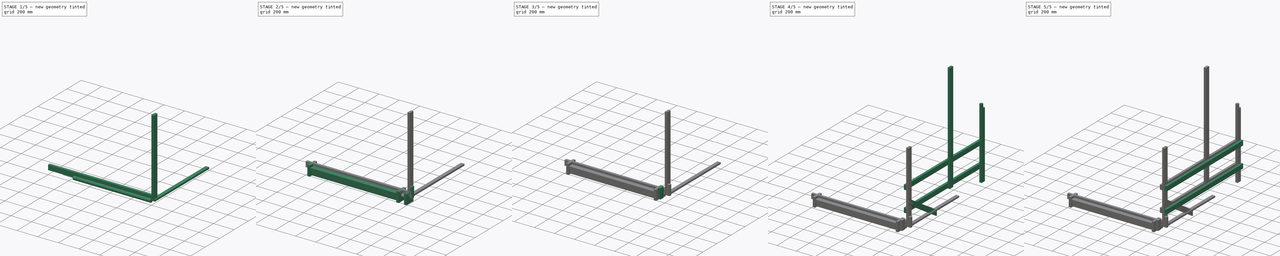
[diagram: build sequence overview — one tinted view per stage of 5, left to right]
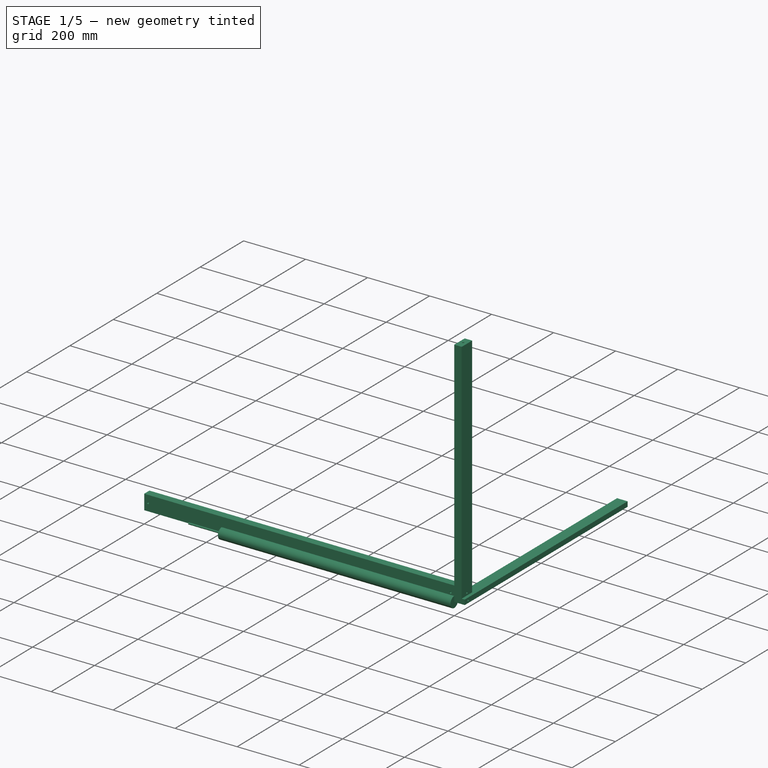
[diagram: stage 1 of 5 — iso view after this stage's code; geometry added in this stage tinted green]
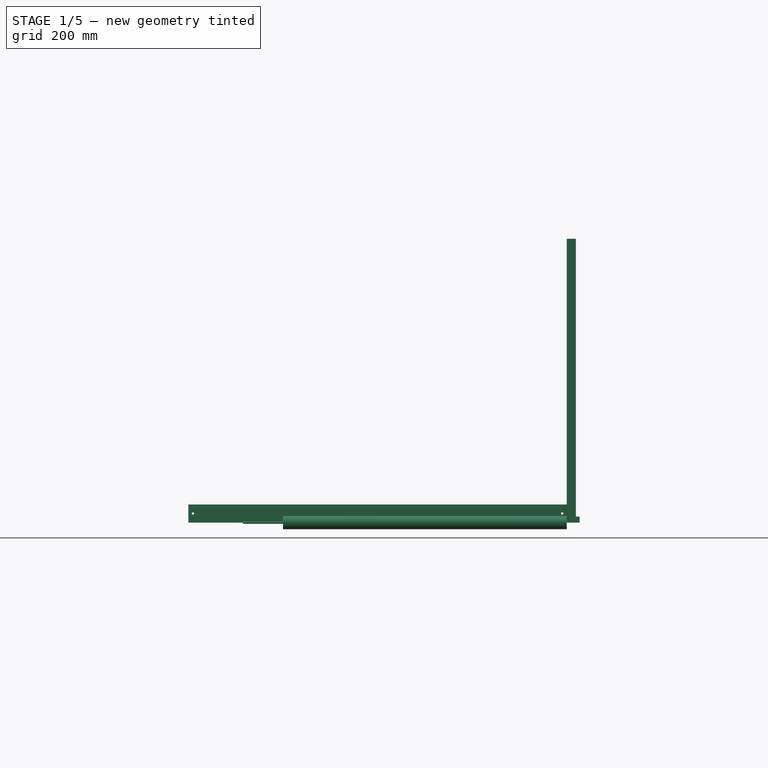
[diagram: stage 1 of 5 — front view after this stage's code; geometry added in this stage tinted green]
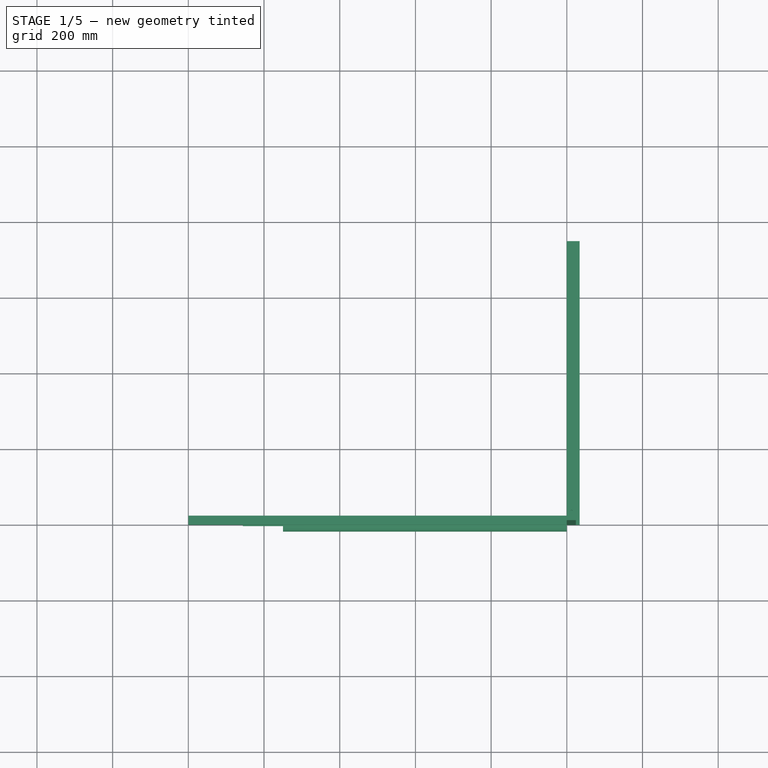
[diagram: stage 1 of 5 — top view after this stage's code; geometry added in this stage tinted green]
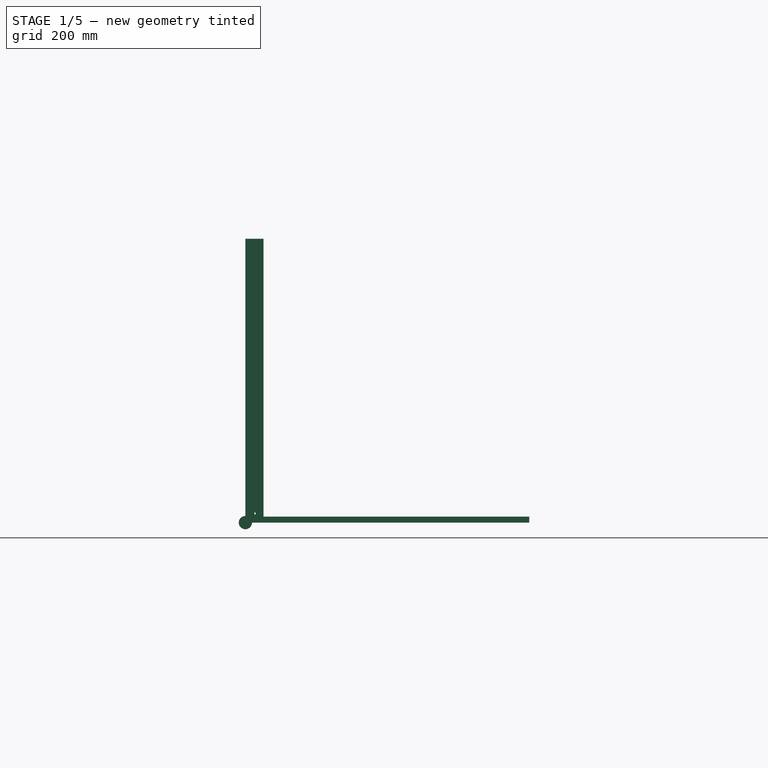
[diagram: stage 1 of 5 — right view after this stage's code; geometry added in this stage tinted green]
FCSTD DOCUMENT  (FreeCAD 0.17R13541 (Git))
Label: telar
License: All rights reserved
LicenseURL: http://en.wikipedia.org/wiki/All_rights_reserved
objects: Sketcher::SketchObject×91, PartDesign::Body×56, PartDesign::Pad×50, PartDesign::Pocket×41, PartDesign::Boolean×8
note: 337 computed .brp shape members not serialized (recipe doc carries the construction recipe); baked Part::Feature solids carry a one-line shape summary decoded from their .brp

FEATURE [PartDesign::Body] Body009  label="lateral_l"
  Group = -> [Boolean002,Boolean003]
  Origin = -> Origin011
  Placement = pos=(-976,0,0) rot=(0,0,1;0rad)
  Tip = -> Boolean003
FEATURE [Sketcher::SketchObject] Sketch024
  MapMode = 5
  Placement = pos=(0,0,0) rot=(0.57735,0.57735,0.57735;2.0944rad)
  Support = -> [YZ_Plane012]
  sketch-geometry (4):
    g0: LineSegment StartX=0 StartY=0 StartZ=0 EndX=24 EndY=0 EndZ=0
    g1: LineSegment StartX=24 StartY=0 StartZ=0 EndX=24 EndY=48 EndZ=0
    g2: LineSegment StartX=24 StartY=48 StartZ=0 EndX=0 EndY=48 EndZ=0
    g3: LineSegment StartX=0 StartY=48 StartZ=0 EndX=0 EndY=0 EndZ=0
  constraints (11):
    c: Coincident(g0,g1)
    c: Coincident(g1,g2)
    c: Coincident(g2,g3)
    c: Coincident(g3,g0)
    c: Horizontal(g0)
    c: Horizontal(g2)
    c: Vertical(g1)
    c: Vertical(g3)
    c: Coincident(g0,g-1)
    c: DistanceY(g3,g3) = 48
    c: DistanceX(g0,g0) = 24
FEATURE [PartDesign::Pad] Pad010
  Length = 1000
  Length2 = 100
  Placement = pos=(0,0,0) rot=(0.57735,0.57735,0.57735;2.0944rad)
  Profile = -> Sketch024
  Refine = true
  Reversed = true
  Type = 0
FEATURE [Sketcher::SketchObject] Sketch025
  ExternalGeometry = -> [Pad010]
  MapMode = 5
  Placement = pos=(0,0,0) rot=(-0.57735,-0.57735,0.57735;4.18879rad)
  Support = -> [Pad010]
  sketch-geometry (6):
    g0: LineSegment [constr] StartX=-24 StartY=0 StartZ=0 EndX=-24 EndY=-988 EndZ=0
    g1: GeomPoint X=-24 Y=-12 Z=0
    g2: GeomPoint X=-24 Y=0 Z=0
    g3: GeomPoint X=-24 Y=-12 Z=0
    g4: Circle CenterX=-24 CenterY=-12 CenterZ=0 NormalX=0 NormalY=0 NormalZ=1 AngleXU=0 Radius=3
    g5: Circle CenterX=-24 CenterY=-988 CenterZ=0 NormalX=0 NormalY=0 NormalZ=1 AngleXU=0 Radius=3
  constraints (11):
    c: Vertical(g0)
    c: Symmetric(g-3,g-1,g0)
    c: DistanceY(g0,g0) = 988
    c: PointOnObject(g1,g0)
    c: Coincident(g2,g0)
    c: Coincident(g3,g1)
    c: DistanceY(g1,g0) = 12
    c: Coincident(g4,g1)
    c: Radius(g4) = 3
    c: Coincident(g5,g0)
    c: Equal(g5,g4)
FEATURE [PartDesign::Pocket] Pocket014
  BaseFeature = -> Pad010
  Length = 5
  Length2 = 100
  Placement = pos=(0,0,0) rot=(0.57735,0.57735,0.57735;2.0944rad)
  Profile = -> Sketch025
  Refine = true
  Type = 1
FEATURE [PartDesign::Body] Body012  label="frontbar_d"
  Group = -> [Sketch024,Pad010,Sketch025,Pocket014,Sketch072,Pocket032]
  Origin = -> Origin012
  Placement = pos=(24,-24,78) rot=(0,0,1;0rad)
  Tip = -> Pocket032
FEATURE [Sketcher::SketchObject] Sketch073
  MapMode = 5
  Placement = pos=(0,0,0) rot=(0.57735,0.57735,0.57735;2.0944rad)
  Support = -> [YZ_Plane047]
  sketch-geometry (1):
    g0: Circle CenterX=0 CenterY=0 CenterZ=0 NormalX=0 NormalY=0 NormalZ=1 AngleXU=0 Radius=3
  constraints (2):
    c: Coincident(g0,g-1)
    c: Radius(g0) = 3
FEATURE [PartDesign::Pad] Pad040
  Length = 856
  Length2 = 100
  Placement = pos=(0,0,0) rot=(0.57735,0.57735,0.57735;2.0944rad)
  Profile = -> Sketch073
  Refine = true
  Reversed = true
  Type = 0
FEATURE [PartDesign::Body] Body046  label="pedal_rod"
  Group = -> [Sketch073,Pad040]
  Origin = -> Origin046
  Placement = pos=(-48,12,50) rot=(0,0,1;0rad)
  Tip = -> Pad040
FEATURE [Sketcher::SketchObject] Sketch074
  MapMode = 5
  Placement = pos=(0,0,0) rot=(1,0,0;1.5708rad)
  Support = -> [XZ_Plane047]
  sketch-geometry (4):
    g0: LineSegment StartX=0 StartY=0 StartZ=0 EndX=34 EndY=0 EndZ=0
    g1: LineSegment StartX=34 StartY=0 StartZ=0 EndX=34 EndY=16 EndZ=0
    g2: LineSegment StartX=34 StartY=16 StartZ=0 EndX=0 EndY=16 EndZ=0
    g3: LineSegment StartX=0 StartY=16 StartZ=0 EndX=0 EndY=0 EndZ=0
  constraints (11):
    c: Coincident(g0,g1)
    c: Coincident(g1,g2)
    c: Coincident(g2,g3)
    c: Coincident(g3,g0)
    c: Horizontal(g0)
    c: Horizontal(g2)
    c: Vertical(g1)
    c: Vertical(g3)
    c: Coincident(g0,g-1)
    c: DistanceX(g0,g0) = 34
    c: DistanceY(g3,g3) = 16
FEATURE [PartDesign::Pad] Pad041
  Length = 750
  Length2 = 100
  Placement = pos=(0,0,0) rot=(1,0,0;1.5708rad)
  Profile = -> Sketch074
  Refine = true
  Reversed = true
  Type = 0
FEATURE [Sketcher::SketchObject] Sketch075
  ExternalGeometry = -> [Pad041]
  MapMode = 5
  Placement = pos=(34,0,0) rot=(0.707107,0,0.707107;3.14159rad)
  Support = -> [Pad041]
  sketch-geometry (2):
    g0: LineSegment [constr] StartX=8 StartY=0 StartZ=0 EndX=8 EndY=-16 EndZ=0
    g1: Circle CenterX=8 CenterY=-16 CenterZ=0 NormalX=0 NormalY=0 NormalZ=1 AngleXU=0 Radius=3
  constraints (6):
    c: PointOnObject(g0,g-3)
    c: Vertical(g0)
    c: Symmetric(g-1,g-3,g0)
    c: DistanceY(g0,g0) = 16
    c: Coincident(g1,g0)
    c: Radius(g1) = 3
FEATURE [PartDesign::Pocket] Pocket033
  BaseFeature = -> Pad041
  Length = 5
  Length2 = 100
  Placement = pos=(0,0,0) rot=(1,0,0;1.5708rad)
  Profile = -> Sketch075
  Refine = true
  Type = 1
FEATURE [PartDesign::Body] Body047  label="pedal_1r"
  Group = -> [Sketch074,Pad041,Sketch075,Pocket033]
  Origin = -> Origin047
  Placement = pos=(-404,-1.38426,38.1315) rot=(1,0,0;0.261799rad)
  Tip = -> Pocket033
FEATURE [Sketcher::SketchObject] Sketch076
  MapMode = 5
  Placement = pos=(0,0,0) rot=(1,0,0;1.5708rad)
  Support = -> [XZ_Plane048]
  sketch-geometry (4):
    g0: LineSegment StartX=0 StartY=0 StartZ=0 EndX=34 EndY=0 EndZ=0
    g1: LineSegment StartX=34 StartY=0 StartZ=0 EndX=34 EndY=16 EndZ=0
    g2: LineSegment StartX=34 StartY=16 StartZ=0 EndX=0 EndY=16 EndZ=0
    g3: LineSegment StartX=0 StartY=16 StartZ=0 EndX=0 EndY=0 EndZ=0
  constraints (11):
    c: Coincident(g0,g1)
    c: Coincident(g1,g2)
    c: Coincident(g2,g3)
    c: Coincident(g3,g0)
    c: Horizontal(g0)
    c: Horizontal(g2)
    c: Vertical(g1)
    c: Vertical(g3)
    c: Coincident(g0,g-1)
    c: DistanceX(g0,g0) = 34
    c: DistanceY(g3,g3) = 16
FEATURE [PartDesign::Pad] Pad042
  Length = 750
  Length2 = 100
  Placement = pos=(0,0,0) rot=(1,0,0;1.5708rad)
  Profile = -> Sketch076
  Refine = true
  Reversed = true
  Type = 0
FEATURE [Sketcher::SketchObject] Sketch077
  ExternalGeometry = -> [Pad042]
  MapMode = 5
  Placement = pos=(34,0,0) rot=(0.707107,0,0.707107;3.14159rad)
  Support = -> [Pad042]
  sketch-geometry (2):
    g0: LineSegment [constr] StartX=8 StartY=0 StartZ=0 EndX=8 EndY=-16 EndZ=0
    g1: Circle CenterX=8 CenterY=-16 CenterZ=0 NormalX=0 NormalY=0 NormalZ=1 AngleXU=0 Radius=3
  constraints (6):
    c: PointOnObject(g0,g-3)
    c: Vertical(g0)
    c: Symmetric(g-1,g-3,g0)
    c: DistanceY(g0,g0) = 16
    c: Coincident(g1,g0)
    c: Radius(g1) = 3
FEATURE [PartDesign::Pocket] Pocket034
  BaseFeature = -> Pad042
  Length = 5
  Length2 = 100
  Placement = pos=(0,0,0) rot=(1,0,0;1.5708rad)
  Profile = -> Sketch077
  Refine = true
  Type = 1
FEATURE [PartDesign::Body] Body048  label="pedal_1l"
  Group = -> [Sketch076,Pad042,Sketch077,Pocket034]
  Origin = -> Origin048
  Placement = pos=(-584,-1.38426,38.1315) rot=(1,0,0;0.261799rad)
  Tip = -> Pocket034
FEATURE [Sketcher::SketchObject] Sketch078
  MapMode = 5
  Placement = pos=(0,0,0) rot=(1,0,0;1.5708rad)
  Support = -> [XZ_Plane049]
  sketch-geometry (4):
    g0: LineSegment StartX=0 StartY=0 StartZ=0 EndX=34 EndY=0 EndZ=0
    g1: LineSegment StartX=34 StartY=0 StartZ=0 EndX=34 EndY=16 EndZ=0
    g2: LineSegment StartX=34 StartY=16 StartZ=0 EndX=0 EndY=16 EndZ=0
    g3: LineSegment StartX=0 StartY=16 StartZ=0 EndX=0 EndY=0 EndZ=0
  constraints (11):
    c: Coincident(g0,g1)
    c: Coincident(g1,g2)
    c: Coincident(g2,g3)
    c: Coincident(g3,g0)
    c: Horizontal(g0)
    c: Horizontal(g2)
    c: Vertical(g1)
    c: Vertical(g3)
    c: Coincident(g0,g-1)
    c: DistanceX(g0,g0) = 34
    c: DistanceY(g3,g3) = 16
FEATURE [PartDesign::Pad] Pad043
  Length = 750
  Length2 = 100
  Placement = pos=(0,0,0) rot=(1,0,0;1.5708rad)
  Profile = -> Sketch078
  Refine = true
  Reversed = true
  Type = 0
FEATURE [Sketcher::SketchObject] Sketch079
  ExternalGeometry = -> [Pad043]
  MapMode = 5
  Placement = pos=(34,0,0) rot=(0.707107,0,0.707107;3.14159rad)
  Support = -> [Pad043]
  sketch-geometry (2):
    g0: LineSegment [constr] StartX=8 StartY=0 StartZ=0 EndX=8 EndY=-16 EndZ=0
    g1: Circle CenterX=8 CenterY=-16 CenterZ=0 NormalX=0 NormalY=0 NormalZ=1 AngleXU=0 Radius=3
  constraints (6):
    c: PointOnObject(g0,g-3)
    c: Vertical(g0)
    c: Symmetric(g-1,g-3,g0)
    c: DistanceY(g0,g0) = 16
    c: Coincident(g1,g0)
    c: Radius(g1) = 3
FEATURE [PartDesign::Pocket] Pocket035
  BaseFeature = -> Pad043
  Length = 5
  Length2 = 100
  Placement = pos=(0,0,0) rot=(1,0,0;1.5708rad)
  Profile = -> Sketch079
  Refine = true
  Type = 1
FEATURE [PartDesign::Body] Body049  label="pedal_2r"
  Group = -> [Sketch078,Pad043,Sketch079,Pocket035]
  Origin = -> Origin049
  Placement = pos=(-322,-1.38426,38.1315) rot=(1,0,0;0.261799rad)
  Tip = -> Pocket035
FEATURE [Sketcher::SketchObject] Sketch081
  MapMode = 5
  Placement = pos=(0,0,0) rot=(1,0,0;1.5708rad)
  Support = -> [XZ_Plane050]
  sketch-geometry (4):
    g0: LineSegment StartX=0 StartY=0 StartZ=0 EndX=34 EndY=0 EndZ=0
    g1: LineSegment StartX=34 StartY=0 StartZ=0 EndX=34 EndY=16 EndZ=0
    g2: LineSegment StartX=34 StartY=16 StartZ=0 EndX=0 EndY=16 EndZ=0
    g3: LineSegment StartX=0 StartY=16 StartZ=0 EndX=0 EndY=0 EndZ=0
  constraints (11):
    c: Coincident(g0,g1)
    c: Coincident(g1,g2)
    c: Coincident(g2,g3)
    c: Coincident(g3,g0)
    c: Horizontal(g0)
    c: Horizontal(g2)
    c: Vertical(g1)
    c: Vertical(g3)
    c: Coincident(g0,g-1)
    c: DistanceX(g0,g0) = 34
    c: DistanceY(g3,g3) = 16
FEATURE [PartDesign::Pad] Pad044
  Length = 750
  Length2 = 100
  Placement = pos=(0,0,0) rot=(1,0,0;1.5708rad)
  Profile = -> Sketch081
  Refine = true
  Reversed = true
  Type = 0
FEATURE [Sketcher::SketchObject] Sketch080
  ExternalGeometry = -> [Pad044]
  MapMode = 5
  Placement = pos=(34,0,0) rot=(0.707107,0,0.707107;3.14159rad)
  Support = -> [Pad044]
  sketch-geometry (2):
    g0: LineSegment [constr] StartX=8 StartY=0 StartZ=0 EndX=8 EndY=-16 EndZ=0
    g1: Circle CenterX=8 CenterY=-16 CenterZ=0 NormalX=0 NormalY=0 NormalZ=1 AngleXU=0 Radius=3
  constraints (6):
    c: PointOnObject(g0,g-3)
    c: Vertical(g0)
    c: Symmetric(g-1,g-3,g0)
    c: DistanceY(g0,g0) = 16
    c: Coincident(g1,g0)
    c: Radius(g1) = 3
FEATURE [PartDesign::Pocket] Pocket036
  BaseFeature = -> Pad044
  Length = 5
  Length2 = 100
  Placement = pos=(0,0,0) rot=(1,0,0;1.5708rad)
  Profile = -> Sketch080
  Refine = true
  Type = 1
FEATURE [PartDesign::Body] Body050  label="pedal_3r"
  Group = -> [Sketch081,Pad044,Sketch080,Pocket036]
  Origin = -> Origin050
  Placement = pos=(-240,-1.38426,38.1315) rot=(1,0,0;0.261799rad)
  Tip = -> Pocket036
FEATURE [Sketcher::SketchObject] Sketch083
  MapMode = 5
  Placement = pos=(0,0,0) rot=(1,0,0;1.5708rad)
  Support = -> [XZ_Plane051]
  sketch-geometry (4):
    g0: LineSegment StartX=0 StartY=0 StartZ=0 EndX=34 EndY=0 EndZ=0
    g1: LineSegment StartX=34 StartY=0 StartZ=0 EndX=34 EndY=16 EndZ=0
    g2: LineSegment StartX=34 StartY=16 StartZ=0 EndX=0 EndY=16 EndZ=0
    g3: LineSegment StartX=0 StartY=16 StartZ=0 EndX=0 EndY=0 EndZ=0
  constraints (11):
    c: Coincident(g0,g1)
    c: Coincident(g1,g2)
    c: Coincident(g2,g3)
    c: Coincident(g3,g0)
    c: Horizontal(g0)
    c: Horizontal(g2)
    c: Vertical(g1)
    c: Vertical(g3)
    c: Coincident(g0,g-1)
    c: DistanceX(g0,g0) = 34
    c: DistanceY(g3,g3) = 16
FEATURE [PartDesign::Pad] Pad045
  Length = 750
  Length2 = 100
  Placement = pos=(0,0,0) rot=(1,0,0;1.5708rad)
  Profile = -> Sketch083
  Refine = true
  Reversed = true
  Type = 0
FEATURE [Sketcher::SketchObject] Sketch082
  ExternalGeometry = -> [Pad045]
  MapMode = 5
  Placement = pos=(34,0,0) rot=(0.707107,0,0.707107;3.14159rad)
  Support = -> [Pad045]
  sketch-geometry (2):
    g0: LineSegment [constr] StartX=8 StartY=0 StartZ=0 EndX=8 EndY=-16 EndZ=0
    g1: Circle CenterX=8 CenterY=-16 CenterZ=0 NormalX=0 NormalY=0 NormalZ=1 AngleXU=0 Radius=3
  constraints (6):
    c: PointOnObject(g0,g-3)
    c: Vertical(g0)
    c: Symmetric(g-1,g-3,g0)
    c: DistanceY(g0,g0) = 16
    c: Coincident(g1,g0)
    c: Radius(g1) = 3
FEATURE [PartDesign::Pocket] Pocket037
  BaseFeature = -> Pad045
  Length = 5
  Length2 = 100
  Placement = pos=(0,0,0) rot=(1,0,0;1.5708rad)
  Profile = -> Sketch082
  Refine = true
  Type = 1
FEATURE [PartDesign::Body] Body051  label="pedal_2l"
  Group = -> [Sketch083,Pad045,Sketch082,Pocket037]
  Origin = -> Origin051
  Placement = pos=(-666,-1.38426,38.1315) rot=(1,0,0;0.261799rad)
  Tip = -> Pocket037
FEATURE [Sketcher::SketchObject] Sketch085
  MapMode = 5
  Placement = pos=(0,0,0) rot=(1,0,0;1.5708rad)
  Support = -> [XZ_Plane052]
  sketch-geometry (4):
    g0: LineSegment StartX=0 StartY=0 StartZ=0 EndX=34 EndY=0 EndZ=0
    g1: LineSegment StartX=34 StartY=0 StartZ=0 EndX=34 EndY=16 EndZ=0
    g2: LineSegment StartX=34 StartY=16 StartZ=0 EndX=0 EndY=16 EndZ=0
    g3: LineSegment StartX=0 StartY=16 StartZ=0 EndX=0 EndY=0 EndZ=0
  constraints (11):
    c: Coincident(g0,g1)
    c: Coincident(g1,g2)
    c: Coincident(g2,g3)
    c: Coincident(g3,g0)
    c: Horizontal(g0)
    c: Horizontal(g2)
    c: Vertical(g1)
    c: Vertical(g3)
    c: Coincident(g0,g-1)
    c: DistanceX(g0,g0) = 34
    c: DistanceY(g3,g3) = 16
FEATURE [PartDesign::Pad] Pad046
  Length = 750
  Length2 = 100
  Placement = pos=(0,0,0) rot=(1,0,0;1.5708rad)
  Profile = -> Sketch085
  Refine = true
  Reversed = true
  Type = 0
FEATURE [Sketcher::SketchObject] Sketch084
  ExternalGeometry = -> [Pad046]
  MapMode = 5
  Placement = pos=(34,0,0) rot=(0.707107,0,0.707107;3.14159rad)
  Support = -> [Pad046]
  sketch-geometry (2):
    g0: LineSegment [constr] StartX=8 StartY=0 StartZ=0 EndX=8 EndY=-16 EndZ=0
    g1: Circle CenterX=8 CenterY=-16 CenterZ=0 NormalX=0 NormalY=0 NormalZ=1 AngleXU=0 Radius=3
  constraints (6):
    c: PointOnObject(g0,g-3)
    c: Vertical(g0)
    c: Symmetric(g-1,g-3,g0)
    c: DistanceY(g0,g0) = 16
    c: Coincident(g1,g0)
    c: Radius(g1) = 3
FEATURE [PartDesign::Pocket] Pocket038
  BaseFeature = -> Pad046
  Length = 5
  Length2 = 100
  Placement = pos=(0,0,0) rot=(1,0,0;1.5708rad)
  Profile = -> Sketch084
  Refine = true
  Type = 1
FEATURE [PartDesign::Body] Body052  label="pedal_3l"
  Group = -> [Sketch085,Pad046,Sketch084,Pocket038]
  Origin = -> Origin052
  Placement = pos=(-748,-1.38426,38.1315) rot=(1,0,0;0.261799rad)
  Tip = -> Pocket038
FEATURE [Sketcher::SketchObject] Sketch086
  MapMode = 5
  Placement = pos=(0,0,0) rot=(0.57735,0.57735,0.57735;2.0944rad)
  Support = -> [YZ_Plane054]
  sketch-geometry (1):
    g0: Circle CenterX=0 CenterY=0 CenterZ=0 NormalX=0 NormalY=0 NormalZ=1 AngleXU=0 Radius=17.5
  constraints (2):
    c: Coincident(g0,g-1)
    c: Radius(g0) = 17.5
FEATURE [PartDesign::Pad] Pad047
  Length = 750
  Length2 = 100
  Placement = pos=(0,0,0) rot=(0.57735,0.57735,0.57735;2.0944rad)
  Profile = -> Sketch086
  Refine = true
  Reversed = true
  Type = 0
FEATURE [PartDesign::Body] Body053  label="lam_sf"
  Group = -> [Sketch086,Pad047]
  Origin = -> Origin053
  Placement = pos=(-100,625,1000) rot=(0,0,1;0rad)
  Tip = -> Pad047
FEATURE [Sketcher::SketchObject] Sketch087
  MapMode = 5
  Placement = pos=(0,0,0) rot=(0.57735,0.57735,0.57735;2.0944rad)
  Support = -> [YZ_Plane055]
  sketch-geometry (1):
    g0: Circle CenterX=0 CenterY=0 CenterZ=0 NormalX=0 NormalY=0 NormalZ=1 AngleXU=0 Radius=17.5
  constraints (2):
    c: Coincident(g0,g-1)
    c: Radius(g0) = 17.5
FEATURE [PartDesign::Pad] Pad048
  Length = 750
  Length2 = 100
  Placement = pos=(0,0,0) rot=(0.57735,0.57735,0.57735;2.0944rad)
  Profile = -> Sketch087
  Refine = true
  Reversed = true
  Type = 0
FEATURE [PartDesign::Body] Body054  label="lam_sr"
  Group = -> [Sketch087,Pad048]
  Origin = -> Origin054
  Placement = pos=(-100,670,1000) rot=(0,0,1;0rad)
  Tip = -> Pad048
FEATURE [Sketcher::SketchObject] Sketch088
  MapMode = 5
  Support = -> [XY_Plane055]
  sketch-geometry (4):
    g0: LineSegment StartX=0 StartY=0 StartZ=0 EndX=24 EndY=0 EndZ=0
    g1: LineSegment StartX=24 StartY=0 StartZ=0 EndX=24 EndY=48 EndZ=0
    g2: LineSegment StartX=24 StartY=48 StartZ=0 EndX=0 EndY=48 EndZ=0
    g3: LineSegment StartX=0 StartY=48 StartZ=0 EndX=0 EndY=0 EndZ=0
  constraints (11):
    c: Coincident(g0,g1)
    c: Coincident(g1,g2)
    c: Coincident(g2,g3)
    c: Coincident(g3,g0)
    c: Horizontal(g0)
    c: Horizontal(g2)
    c: Vertical(g1)
    c: Vertical(g3)
    c: Coincident(g0,g-1)
    c: DistanceX(g0,g0) = 24
    c: DistanceY(g3,g3) = 48
FEATURE [PartDesign::Pad] Pad049
  Length = 750
  Length2 = 100
  Profile = -> Sketch088
  Refine = true
  Type = 0
FEATURE [Sketcher::SketchObject] Sketch089
  ExternalGeometry = -> [Pad049]
  MapMode = 5
  Placement = pos=(24,0,0) rot=(0.57735,0.57735,0.57735;2.0944rad)
  Support = -> [Pad049]
  sketch-geometry (3):
    g0: LineSegment [constr] StartX=24.3196 StartY=0 StartZ=0 EndX=24.3196 EndY=726 EndZ=0
    g1: GeomPoint X=24.3196 Y=24 Z=0
    g2: Circle CenterX=24.3196 CenterY=24 CenterZ=0 NormalX=0 NormalY=0 NormalZ=1 AngleXU=0 Radius=3
  constraints (7):
    c: PointOnObject(g0,g-3)
    c: Vertical(g0)
    c: DistanceY(g0,g0) = 726
    c: PointOnObject(g1,g0)
    c: DistanceY(g0,g1) = 24
    c: Coincident(g2,g1)
    c: Radius(g2) = 3
FEATURE [PartDesign::Pocket] Pocket039
  BaseFeature = -> Pad049
  Length = 5
  Length2 = 100
  Profile = -> Sketch089
  Refine = true
  Type = 1
FEATURE [Sketcher::SketchObject] Sketch090
  ExternalGeometry = -> [Pocket039]
  MapMode = 5
  Placement = pos=(0,0,750) rot=(0,0,1;0rad)
  Support = -> [Pocket039]
  sketch-geometry (2):
    g0: LineSegment [constr] StartX=12 StartY=0 StartZ=0 EndX=12 EndY=24 EndZ=0
    g1: Circle CenterX=12 CenterY=24 CenterZ=0 NormalX=0 NormalY=0 NormalZ=1 AngleXU=0 Radius=3
  constraints (6):
    c: PointOnObject(g0,g-3)
    c: Vertical(g0)
    c: Symmetric(g-1,g-3,g0)
    c: DistanceY(g0,g0) = 24
    c: Coincident(g1,g0)
    c: Radius(g1) = 3
FEATURE [PartDesign::Pocket] Pocket040
  BaseFeature = -> Pocket039
  Length = 24
  Length2 = 100
  Profile = -> Sketch090
  Refine = true
  Type = 0
FEATURE [PartDesign::Body] Body055  label="Beater_l"
  Group = -> [Sketch088,Pad049,Sketch089,Pocket039,Sketch090,Pocket040]
  Origin = -> Origin055
  Tip = -> Pocket040
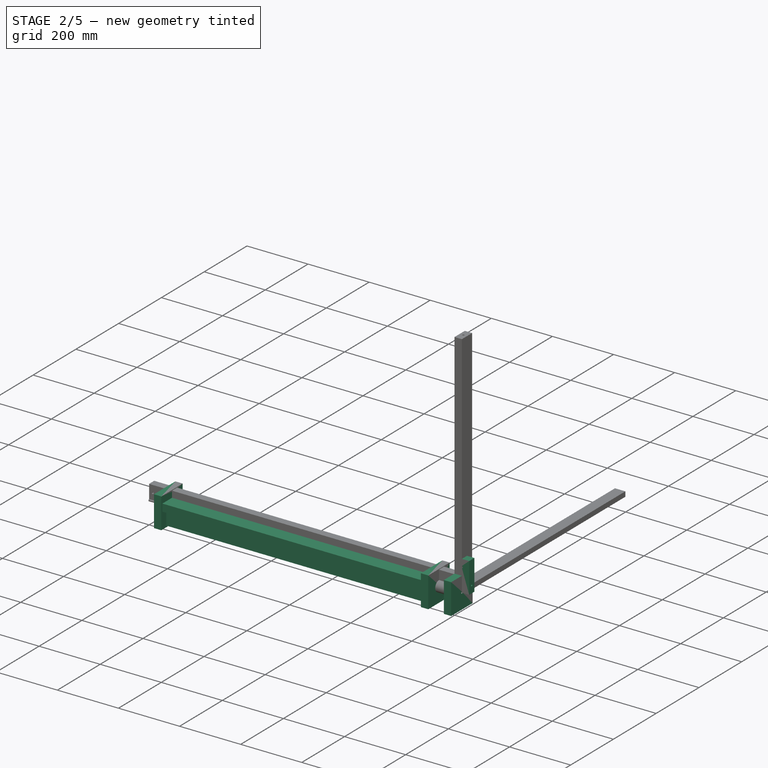
[diagram: stage 2 of 5 — iso view after this stage's code; geometry added in this stage tinted green]
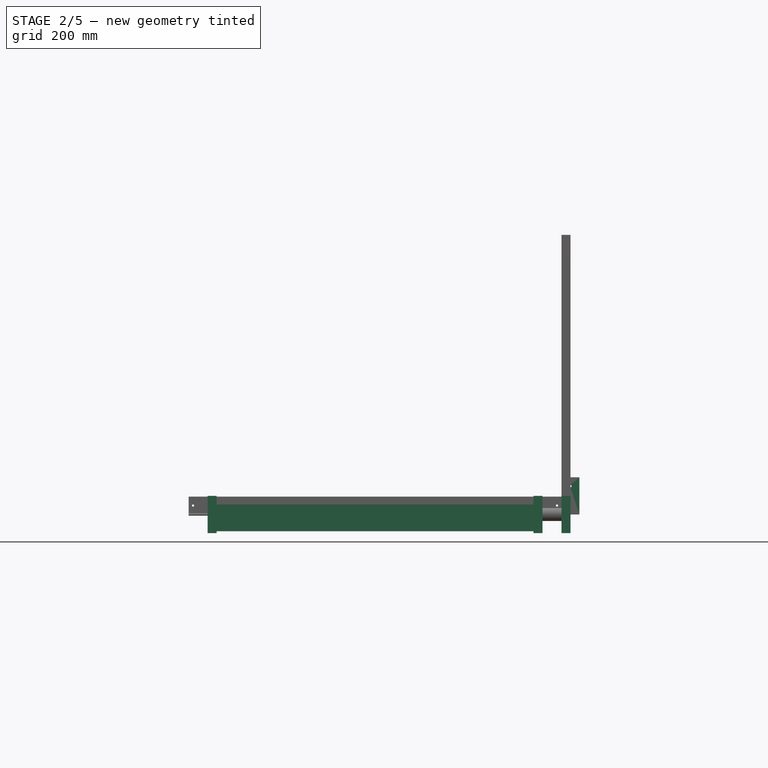
[diagram: stage 2 of 5 — front view after this stage's code; geometry added in this stage tinted green]
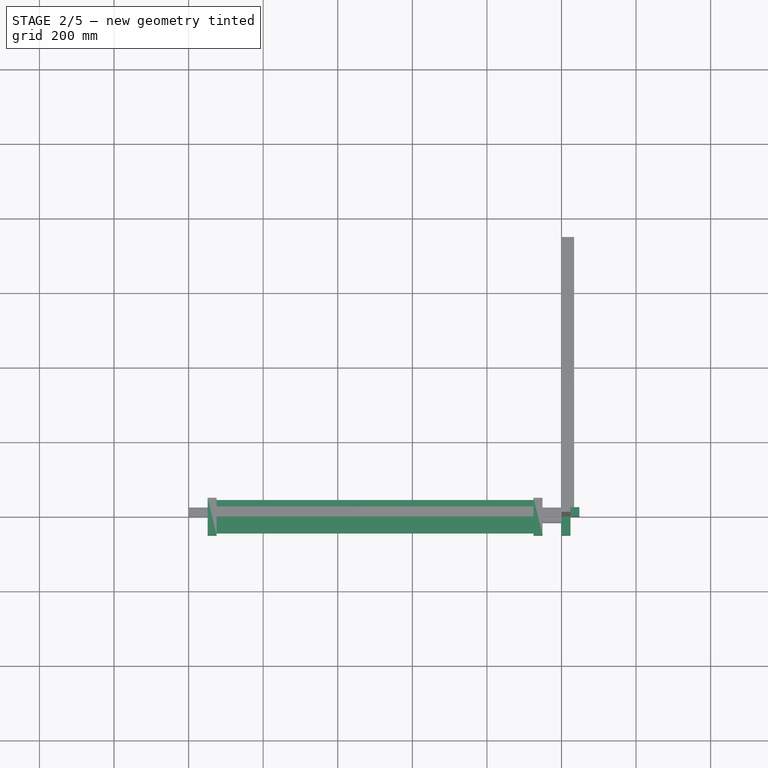
[diagram: stage 2 of 5 — top view after this stage's code; geometry added in this stage tinted green]
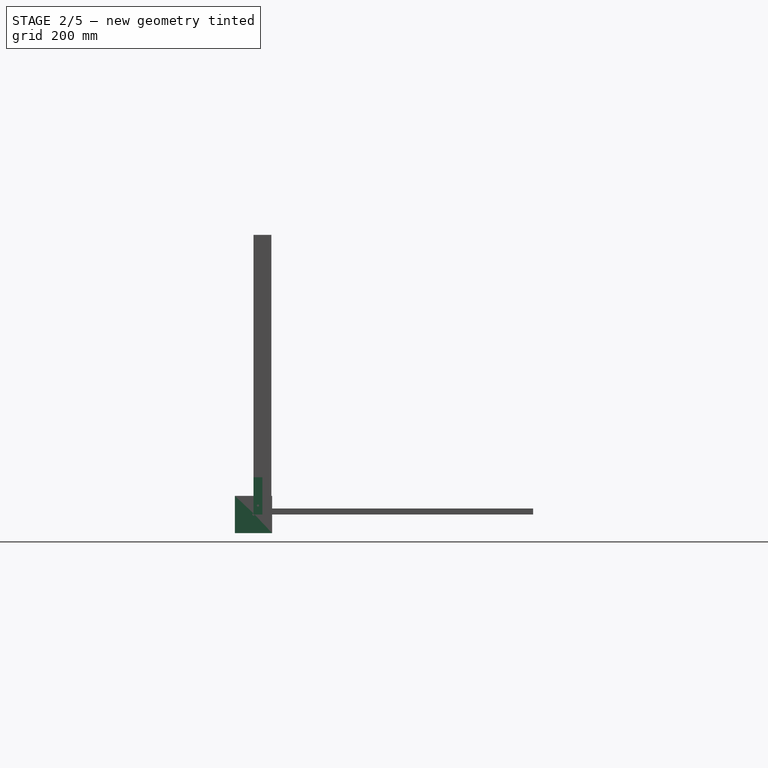
[diagram: stage 2 of 5 — right view after this stage's code; geometry added in this stage tinted green]
FEATURE [PartDesign::Body] Body031  label="lam_d"
  Group = -> [Sketch053,Pad027]
  Origin = -> Origin031
  Placement = pos=(-75,0,0) rot=(-1,0,0;1.5708rad)
  Tip = -> Pad027
FEATURE [Sketcher::SketchObject] Sketch054
  MapMode = 5
  Placement = pos=(0,0,0) rot=(0.57735,0.57735,0.57735;2.0944rad)
  Support = -> [YZ_Plane033]
  sketch-geometry (5):
    g0: LineSegment StartX=-50 StartY=50 StartZ=0 EndX=50 EndY=50 EndZ=0
    g1: LineSegment StartX=50 StartY=50 StartZ=0 EndX=50 EndY=-50 EndZ=0
    g2: LineSegment StartX=50 StartY=-50 StartZ=0 EndX=-50 EndY=-50 EndZ=0
    g3: LineSegment StartX=-50 StartY=-50 StartZ=0 EndX=-50 EndY=50 EndZ=0
    g4: Circle CenterX=0 CenterY=0 CenterZ=0 NormalX=0 NormalY=0 NormalZ=1 AngleXU=0 Radius=3
  constraints (14):
    c: Coincident(g0,g1)
    c: Coincident(g1,g2)
    c: Coincident(g2,g3)
    c: Coincident(g3,g0)
    c: Horizontal(g0)
    c: Horizontal(g2)
    c: Vertical(g1)
    c: Vertical(g3)
    c: Symmetric(g0,g0,g-2)
    c: Symmetric(g0,g2,g-1)
    c: DistanceY(g3,g3) = 100
    c: Equal(g3,g0)
    c: Coincident(g4,g-1)
    c: Radius(g4) = 3
FEATURE [PartDesign::Pad] Pad028
  Length = 24
  Length2 = 100
  Placement = pos=(0,0,0) rot=(0.57735,0.57735,0.57735;2.0944rad)
  Profile = -> Sketch054
  Refine = true
  Type = 0
FEATURE [PartDesign::Body] Body032  label="cover_r"
  Group = -> [Sketch054,Pad028]
  Origin = -> Origin032
  Placement = pos=(-75,0,0) rot=(0,0,1;0rad)
  Tip = -> Pad028
FEATURE [Sketcher::SketchObject] Sketch055
  MapMode = 5
  Placement = pos=(0,0,0) rot=(0.57735,0.57735,0.57735;2.0944rad)
  Support = -> [YZ_Plane034]
  sketch-geometry (5):
    g0: LineSegment StartX=-50 StartY=50 StartZ=0 EndX=50 EndY=50 EndZ=0
    g1: LineSegment StartX=50 StartY=50 StartZ=0 EndX=50 EndY=-50 EndZ=0
    g2: LineSegment StartX=50 StartY=-50 StartZ=0 EndX=-50 EndY=-50 EndZ=0
    g3: LineSegment StartX=-50 StartY=-50 StartZ=0 EndX=-50 EndY=50 EndZ=0
    g4: Circle CenterX=0 CenterY=0 CenterZ=0 NormalX=0 NormalY=0 NormalZ=1 AngleXU=0 Radius=3
  constraints (14):
    c: Coincident(g0,g1)
    c: Coincident(g1,g2)
    c: Coincident(g2,g3)
    c: Coincident(g3,g0)
    c: Horizontal(g0)
    c: Horizontal(g2)
    c: Vertical(g1)
    c: Vertical(g3)
    c: Symmetric(g0,g0,g-2)
    c: Symmetric(g0,g2,g-1)
    c: DistanceY(g3,g3) = 100
    c: Equal(g3,g0)
    c: Coincident(g4,g-1)
    c: Radius(g4) = 3
FEATURE [PartDesign::Pad] Pad029
  Length = 24
  Length2 = 100
  Placement = pos=(0,0,0) rot=(0.57735,0.57735,0.57735;2.0944rad)
  Profile = -> Sketch055
  Refine = true
  Type = 0
FEATURE [PartDesign::Body] Body034  label="lam_front"
  Group = -> [Boolean006]
  Origin = -> Origin034
  Placement = pos=(24,450,370) rot=(1,0,0;0.785398rad)
  Tip = -> Boolean006
FEATURE [Sketcher::SketchObject] Sketch056
  MapMode = 5
  Placement = pos=(0,0,0) rot=(0.57735,0.57735,0.57735;2.0944rad)
  Support = -> [YZ_Plane041]
  sketch-geometry (4):
    g0: LineSegment StartX=3 StartY=-3 StartZ=0 EndX=27 EndY=-3 EndZ=0
    g1: LineSegment StartX=27 StartY=-3 StartZ=0 EndX=27 EndY=45 EndZ=0
    g2: LineSegment StartX=27 StartY=45 StartZ=0 EndX=3 EndY=45 EndZ=0
    g3: LineSegment StartX=3 StartY=45 StartZ=0 EndX=3 EndY=-3 EndZ=0
  constraints (12):
    c: Coincident(g0,g1)
    c: Coincident(g1,g2)
    c: Coincident(g2,g3)
    c: Coincident(g3,g0)
    c: Horizontal(g0)
    c: Horizontal(g2)
    c: Vertical(g1)
    c: Vertical(g3)
    c: DistanceX(g0,g0) = 24
    c: DistanceX(g-1,g0) = 3
    c: DistanceY(g3,g3) = 48
    c: DistanceY(g0,g-1) = 3
FEATURE [PartDesign::Pad] Pad030
  Length = 850
  Length2 = 100
  Placement = pos=(0,0,0) rot=(0.57735,0.57735,0.57735;2.0944rad)
  Profile = -> Sketch056
  Refine = true
  Reversed = true
  Type = 0
FEATURE [PartDesign::Body] Body038  label="lam_b001"
  Group = -> [Sketch056,Pad030]
  Origin = -> Origin039
  Placement = pos=(-75,0,0) rot=(1,0,0;1.5708rad)
  Tip = -> Pad030
FEATURE [Sketcher::SketchObject] Sketch057
  MapMode = 5
  Placement = pos=(0,0,0) rot=(0.57735,0.57735,0.57735;2.0944rad)
  Support = -> [YZ_Plane040]
  sketch-geometry (4):
    g0: LineSegment StartX=3 StartY=-3 StartZ=0 EndX=27 EndY=-3 EndZ=0
    g1: LineSegment StartX=27 StartY=-3 StartZ=0 EndX=27 EndY=45 EndZ=0
    g2: LineSegment StartX=27 StartY=45 StartZ=0 EndX=3 EndY=45 EndZ=0
    g3: LineSegment StartX=3 StartY=45 StartZ=0 EndX=3 EndY=-3 EndZ=0
  constraints (12):
    c: Coincident(g0,g1)
    c: Coincident(g1,g2)
    c: Coincident(g2,g3)
    c: Coincident(g3,g0)
    c: Horizontal(g0)
    c: Horizontal(g2)
    c: Vertical(g1)
    c: Vertical(g3)
    c: DistanceX(g0,g0) = 24
    c: DistanceX(g-1,g0) = 3
    c: DistanceY(g3,g3) = 48
    c: DistanceY(g0,g-1) = 3
FEATURE [PartDesign::Pad] Pad032
  Length = 850
  Length2 = 100
  Placement = pos=(0,0,0) rot=(0.57735,0.57735,0.57735;2.0944rad)
  Profile = -> Sketch057
  Refine = true
  Reversed = true
  Type = 0
FEATURE [Sketcher::SketchObject] Sketch058
  MapMode = 5
  Placement = pos=(0,0,0) rot=(0.57735,0.57735,0.57735;2.0944rad)
  Support = -> [YZ_Plane038]
  sketch-geometry (1):
    g0: Circle CenterX=0 CenterY=0 CenterZ=0 NormalX=0 NormalY=0 NormalZ=1 AngleXU=0 Radius=3
  constraints (2):
    c: Coincident(g0,g-1)
    c: Radius(g0) = 3
FEATURE [Sketcher::SketchObject] Sketch059
  MapMode = 5
  Placement = pos=(0,0,0) rot=(0.57735,0.57735,0.57735;2.0944rad)
  Support = -> [YZ_Plane037]
  sketch-geometry (4):
    g0: LineSegment StartX=3 StartY=-3 StartZ=0 EndX=27 EndY=-3 EndZ=0
    g1: LineSegment StartX=27 StartY=-3 StartZ=0 EndX=27 EndY=45 EndZ=0
    g2: LineSegment StartX=27 StartY=45 StartZ=0 EndX=3 EndY=45 EndZ=0
    g3: LineSegment StartX=3 StartY=45 StartZ=0 EndX=3 EndY=-3 EndZ=0
  constraints (12):
    c: Coincident(g0,g1)
    c: Coincident(g1,g2)
    c: Coincident(g2,g3)
    c: Coincident(g3,g0)
    c: Horizontal(g0)
    c: Horizontal(g2)
    c: Vertical(g1)
    c: Vertical(g3)
    c: DistanceX(g0,g0) = 24
    c: DistanceX(g-1,g0) = 3
    c: DistanceY(g3,g3) = 48
    c: DistanceY(g0,g-1) = 3
FEATURE [PartDesign::Pad] Pad033
  Length = 850
  Length2 = 100
  Placement = pos=(0,0,0) rot=(0.57735,0.57735,0.57735;2.0944rad)
  Profile = -> Sketch059
  Refine = true
  Reversed = true
  Type = 0
FEATURE [PartDesign::Body] Body037  label="lam_a001"
  Group = -> [Sketch059,Pad033]
  Origin = -> Origin036
  Placement = pos=(-75,0,0) rot=(0,0,1;0rad)
  Tip = -> Pad033
FEATURE [PartDesign::Pad] Pad034
  Length = 1000
  Length2 = 100
  Placement = pos=(0,0,0) rot=(0.57735,0.57735,0.57735;2.0944rad)
  Profile = -> Sketch058
  Refine = true
  Reversed = true
  Type = 0
FEATURE [PartDesign::Body] Body036  label="lam_rod001"
  Group = -> [Sketch058,Pad034]
  Origin = -> Origin035
  Tip = -> Pad034
FEATURE [Sketcher::SketchObject] Sketch060
  MapMode = 5
  Placement = pos=(0,0,0) rot=(0.57735,0.57735,0.57735;2.0944rad)
  Support = -> [YZ_Plane042]
  sketch-geometry (4):
    g0: LineSegment StartX=3 StartY=-3 StartZ=0 EndX=27 EndY=-3 EndZ=0
    g1: LineSegment StartX=27 StartY=-3 StartZ=0 EndX=27 EndY=45 EndZ=0
    g2: LineSegment StartX=27 StartY=45 StartZ=0 EndX=3 EndY=45 EndZ=0
    g3: LineSegment StartX=3 StartY=45 StartZ=0 EndX=3 EndY=-3 EndZ=0
  constraints (12):
    c: Coincident(g0,g1)
    c: Coincident(g1,g2)
    c: Coincident(g2,g3)
    c: Coincident(g3,g0)
    c: Horizontal(g0)
    c: Horizontal(g2)
    c: Vertical(g1)
    c: Vertical(g3)
    c: DistanceX(g0,g0) = 24
    c: DistanceX(g-1,g0) = 3
    c: DistanceY(g3,g3) = 48
    c: DistanceY(g0,g-1) = 3
FEATURE [PartDesign::Pad] Pad031
  Length = 850
  Length2 = 100
  Placement = pos=(0,0,0) rot=(0.57735,0.57735,0.57735;2.0944rad)
  Profile = -> Sketch060
  Refine = true
  Reversed = true
  Type = 0
FEATURE [PartDesign::Body] Body039  label="lam_c001"
  Group = -> [Sketch057,Pad032]
  Origin = -> Origin038
  Placement = pos=(-75,0,0) rot=(1,0,0;3.14159rad)
  Tip = -> Pad032
FEATURE [PartDesign::Body] Body040  label="lam_d001"
  Group = -> [Sketch060,Pad031]
  Origin = -> Origin041
  Placement = pos=(-75,0,0) rot=(-1,0,0;1.5708rad)
  Tip = -> Pad031
FEATURE [Sketcher::SketchObject] Sketch061
  MapMode = 5
  Placement = pos=(0,0,0) rot=(0.57735,0.57735,0.57735;2.0944rad)
  Support = -> [YZ_Plane039]
  sketch-geometry (5):
    g0: LineSegment StartX=-50 StartY=50 StartZ=0 EndX=50 EndY=50 EndZ=0
    g1: LineSegment StartX=50 StartY=50 StartZ=0 EndX=50 EndY=-50 EndZ=0
    g2: LineSegment StartX=50 StartY=-50 StartZ=0 EndX=-50 EndY=-50 EndZ=0
    g3: LineSegment StartX=-50 StartY=-50 StartZ=0 EndX=-50 EndY=50 EndZ=0
    g4: Circle CenterX=0 CenterY=0 CenterZ=0 NormalX=0 NormalY=0 NormalZ=1 AngleXU=0 Radius=3
  constraints (14):
    c: Coincident(g0,g1)
    c: Coincident(g1,g2)
    c: Coincident(g2,g3)
    c: Coincident(g3,g0)
    c: Horizontal(g0)
    c: Horizontal(g2)
    c: Vertical(g1)
    c: Vertical(g3)
    c: Symmetric(g0,g0,g-2)
    c: Symmetric(g0,g2,g-1)
    c: DistanceY(g3,g3) = 100
    c: Equal(g3,g0)
    c: Coincident(g4,g-1)
    c: Radius(g4) = 3
FEATURE [PartDesign::Pad] Pad036
  Length = 24
  Length2 = 100
  Placement = pos=(0,0,0) rot=(0.57735,0.57735,0.57735;2.0944rad)
  Profile = -> Sketch061
  Refine = true
  Type = 0
FEATURE [PartDesign::Body] Body041  label="cover_r001"
  Group = -> [Sketch061,Pad036]
  Origin = -> Origin042
  Placement = pos=(-75,0,0) rot=(0,0,1;0rad)
  Tip = -> Pad036
FEATURE [Sketcher::SketchObject] Sketch062
  MapMode = 5
  Placement = pos=(0,0,0) rot=(0.57735,0.57735,0.57735;2.0944rad)
  Support = -> [YZ_Plane036]
  sketch-geometry (5):
    g0: LineSegment StartX=-50 StartY=50 StartZ=0 EndX=50 EndY=50 EndZ=0
    g1: LineSegment StartX=50 StartY=50 StartZ=0 EndX=50 EndY=-50 EndZ=0
    g2: LineSegment StartX=50 StartY=-50 StartZ=0 EndX=-50 EndY=-50 EndZ=0
    g3: LineSegment StartX=-50 StartY=-50 StartZ=0 EndX=-50 EndY=50 EndZ=0
    g4: Circle CenterX=0 CenterY=0 CenterZ=0 NormalX=0 NormalY=0 NormalZ=1 AngleXU=0 Radius=3
  constraints (14):
    c: Coincident(g0,g1)
    c: Coincident(g1,g2)
    c: Coincident(g2,g3)
    c: Coincident(g3,g0)
    c: Horizontal(g0)
    c: Horizontal(g2)
    c: Vertical(g1)
    c: Vertical(g3)
    c: Symmetric(g0,g0,g-2)
    c: Symmetric(g0,g2,g-1)
    c: DistanceY(g3,g3) = 100
    c: Equal(g3,g0)
    c: Coincident(g4,g-1)
    c: Radius(g4) = 3
FEATURE [PartDesign::Pad] Pad035
  Length = 24
  Length2 = 100
  Placement = pos=(0,0,0) rot=(0.57735,0.57735,0.57735;2.0944rad)
  Profile = -> Sketch062
  Refine = true
  Type = 0
FEATURE [PartDesign::Body] Body035  label="cover_l001"
  Group = -> [Sketch062,Pad035]
  Origin = -> Origin040
  Placement = pos=(-949,0,0) rot=(0,0,1;0rad)
  Tip = -> Pad035
FEATURE [PartDesign::Boolean] Boolean007
  Group = -> [Body036,Body037,Body038,Body039,Body040,Body041,Body035]
  Type = 0
FEATURE [PartDesign::Body] Body042  label="lam_back"
  Group = -> [Boolean007]
  Origin = -> Origin037
  Placement = pos=(24,850,370) rot=(1,0,0;0.785398rad)
  Tip = -> Boolean007
FEATURE [Sketcher::SketchObject] Sketch063
  MapMode = 5
  Support = -> [XY_Plane043]
  sketch-geometry (4):
    g0: LineSegment StartX=0 StartY=0 StartZ=0 EndX=48 EndY=0 EndZ=0
    g1: LineSegment StartX=48 StartY=0 StartZ=0 EndX=48 EndY=24 EndZ=0
    g2: LineSegment StartX=48 StartY=24 StartZ=0 EndX=0 EndY=24 EndZ=0
    g3: LineSegment StartX=0 StartY=24 StartZ=0 EndX=0 EndY=0 EndZ=0
  constraints (11):
    c: Coincident(g0,g1)
    c: Coincident(g1,g2)
    c: Coincident(g2,g3)
    c: Coincident(g3,g0)
    c: Horizontal(g0)
    c: Horizontal(g2)
    c: Vertical(g1)
    c: Vertical(g3)
    c: Coincident(g0,g-1)
    c: DistanceX(g0,g0) = 48
    c: DistanceY(g3,g3) = 24
FEATURE [PartDesign::Pad] Pad037
  Length = 100
  Length2 = 100
  Profile = -> Sketch063
  Refine = true
  Type = 0
FEATURE [Sketcher::SketchObject] Sketch064
  ExternalGeometry = -> [Pad037]
  MapMode = 5
  Placement = pos=(48,0,0) rot=(0.57735,0.57735,0.57735;2.0944rad)
  Support = -> [Pad037]
  sketch-geometry (2):
    g0: LineSegment [constr] StartX=12 StartY=0 StartZ=0 EndX=12 EndY=24 EndZ=0
    g1: Circle CenterX=12 CenterY=24 CenterZ=0 NormalX=0 NormalY=0 NormalZ=1 AngleXU=0 Radius=3
  constraints (6):
    c: PointOnObject(g0,g-3)
    c: Vertical(g0)
    c: Symmetric(g-1,g-3,g0)
    c: DistanceY(g0,g0) = 24
    c: Coincident(g1,g0)
    c: Radius(g1) = 3
FEATURE [PartDesign::Pocket] Pocket026
  BaseFeature = -> Pad037
  Length = 24
  Length2 = 100
  Profile = -> Sketch064
  Refine = true
  Type = 0
FEATURE [Sketcher::SketchObject] Sketch065
  ExternalGeometry = -> [Pocket026]
  MapMode = 5
  Placement = pos=(0,0,0) rot=(1,0,0;1.5708rad)
  Support = -> [Pocket026]
  sketch-geometry (2):
    g0: LineSegment [constr] StartX=24 StartY=100 StartZ=0 EndX=24 EndY=76 EndZ=0
    g1: Circle CenterX=24 CenterY=76 CenterZ=0 NormalX=0 NormalY=0 NormalZ=1 AngleXU=0 Radius=3
  constraints (6):
    c: PointOnObject(g0,g-3)
    c: Vertical(g0)
    c: Symmetric(g-3,g-3,g0)
    c: DistanceY(g0,g0) = 24
    c: Coincident(g1,g0)
    c: Radius(g1) = 3
FEATURE [PartDesign::Pocket] Pocket027
  BaseFeature = -> Pocket026
  Length = 5
  Length2 = 100
  Profile = -> Sketch065
  Refine = true
  Type = 1
FEATURE [PartDesign::Body] Body043  label="pedal_rod_l"
  Group = -> [Sketch063,Pad037,Sketch064,Pocket026,Sketch065,Pocket027]
  Origin = -> Origin043
  Placement = pos=(-928,0,26) rot=(0,0,1;0rad)
  Tip = -> Pocket027
FEATURE [Sketcher::SketchObject] Sketch066
  MapMode = 5
  Support = -> [XY_Plane044]
  sketch-geometry (4):
    g0: LineSegment StartX=0 StartY=0 StartZ=0 EndX=48 EndY=0 EndZ=0
    g1: LineSegment StartX=48 StartY=0 StartZ=0 EndX=48 EndY=24 EndZ=0
    g2: LineSegment StartX=48 StartY=24 StartZ=0 EndX=0 EndY=24 EndZ=0
    g3: LineSegment StartX=0 StartY=24 StartZ=0 EndX=0 EndY=0 EndZ=0
  constraints (11):
    c: Coincident(g0,g1)
    c: Coincident(g1,g2)
    c: Coincident(g2,g3)
    c: Coincident(g3,g0)
    c: Horizontal(g0)
    c: Horizontal(g2)
    c: Vertical(g1)
    c: Vertical(g3)
    c: Coincident(g0,g-1)
    c: DistanceX(g0,g0) = 48
    c: DistanceY(g3,g3) = 24
FEATURE [PartDesign::Pad] Pad038
  Length = 100
  Length2 = 100
  Profile = -> Sketch066
  Refine = true
  Type = 0
FEATURE [Sketcher::SketchObject] Sketch067
  ExternalGeometry = -> [Pad038]
  MapMode = 5
  Placement = pos=(48,0,0) rot=(0.57735,0.57735,0.57735;2.0944rad)
  Support = -> [Pad038]
  sketch-geometry (2):
    g0: LineSegment [constr] StartX=12 StartY=0 StartZ=0 EndX=12 EndY=24 EndZ=0
    g1: Circle CenterX=12 CenterY=24 CenterZ=0 NormalX=0 NormalY=0 NormalZ=1 AngleXU=0 Radius=3
  constraints (6):
    c: PointOnObject(g0,g-3)
    c: Vertical(g0)
    c: Symmetric(g-1,g-3,g0)
    c: DistanceY(g0,g0) = 24
    c: Coincident(g1,g0)
    c: Radius(g1) = 3
FEATURE [PartDesign::Pocket] Pocket028
  BaseFeature = -> Pad038
  Length = 24
  Length2 = 100
  Profile = -> Sketch067
  Refine = true
  Type = 0
FEATURE [Sketcher::SketchObject] Sketch068
  ExternalGeometry = -> [Pocket028]
  MapMode = 5
  Placement = pos=(0,0,0) rot=(1,0,0;1.5708rad)
  Support = -> [Pocket028]
  sketch-geometry (2):
    g0: LineSegment [constr] StartX=24 StartY=100 StartZ=0 EndX=24 EndY=76 EndZ=0
    g1: Circle CenterX=24 CenterY=76 CenterZ=0 NormalX=0 NormalY=0 NormalZ=1 AngleXU=0 Radius=3
  constraints (6):
    c: PointOnObject(g0,g-3)
    c: Vertical(g0)
    c: Symmetric(g-3,g-3,g0)
    c: DistanceY(g0,g0) = 24
    c: Coincident(g1,g0)
    c: Radius(g1) = 3
FEATURE [PartDesign::Pocket] Pocket029
  BaseFeature = -> Pocket028
  Length = 5
  Length2 = 100
  Profile = -> Sketch068
  Refine = true
  Type = 1
FEATURE [PartDesign::Body] Body044  label="pedal_rod_r"
  Group = -> [Sketch066,Pad038,Sketch067,Pocket028,Sketch068,Pocket029]
  Origin = -> Origin044
  Placement = pos=(-24,24,26) rot=(0,0,1;3.14159rad)
  Tip = -> Pocket029
FEATURE [Sketcher::SketchObject] Sketch071
  MapMode = 5
  Support = -> [XY_Plane043]
  sketch-geometry (4):
    g0: LineSegment StartX=0 StartY=0 StartZ=0 EndX=48 EndY=0 EndZ=0
    g1: LineSegment StartX=48 StartY=0 StartZ=0 EndX=48 EndY=24 EndZ=0
    g2: LineSegment StartX=48 StartY=24 StartZ=0 EndX=0 EndY=24 EndZ=0
    g3: LineSegment StartX=0 StartY=24 StartZ=0 EndX=0 EndY=0 EndZ=0
  constraints (11):
    c: Coincident(g0,g1)
    c: Coincident(g1,g2)
    c: Coincident(g2,g3)
    c: Coincident(g3,g0)
    c: Horizontal(g0)
    c: Horizontal(g2)
    c: Vertical(g1)
    c: Vertical(g3)
    c: Coincident(g0,g-1)
    c: DistanceX(g0,g0) = 48
    c: DistanceY(g3,g3) = 24
FEATURE [PartDesign::Pad] Pad039
  Length = 100
  Length2 = 100
  Profile = -> Sketch071
  Refine = true
  Type = 0
FEATURE [Sketcher::SketchObject] Sketch069
  ExternalGeometry = -> [Pad039]
  MapMode = 5
  Placement = pos=(48,0,0) rot=(0.57735,0.57735,0.57735;2.0944rad)
  Support = -> [Pad039]
  sketch-geometry (2):
    g0: LineSegment [constr] StartX=12 StartY=0 StartZ=0 EndX=12 EndY=24 EndZ=0
    g1: Circle CenterX=12 CenterY=24 CenterZ=0 NormalX=0 NormalY=0 NormalZ=1 AngleXU=0 Radius=3
  constraints (6):
    c: PointOnObject(g0,g-3)
    c: Vertical(g0)
    c: Symmetric(g-1,g-3,g0)
    c: DistanceY(g0,g0) = 24
    c: Coincident(g1,g0)
    c: Radius(g1) = 3
FEATURE [PartDesign::Pocket] Pocket031
  BaseFeature = -> Pad039
  Length = 24
  Length2 = 100
  Profile = -> Sketch069
  Refine = true
  Type = 0
FEATURE [Sketcher::SketchObject] Sketch070
  ExternalGeometry = -> [Pocket031]
  MapMode = 5
  Placement = pos=(0,0,0) rot=(1,0,0;1.5708rad)
  Support = -> [Pocket031]
  sketch-geometry (2):
    g0: LineSegment [constr] StartX=24 StartY=100 StartZ=0 EndX=24 EndY=76 EndZ=0
    g1: Circle CenterX=24 CenterY=76 CenterZ=0 NormalX=0 NormalY=0 NormalZ=1 AngleXU=0 Radius=3
  constraints (6):
    c: PointOnObject(g0,g-3)
    c: Vertical(g0)
    c: Symmetric(g-3,g-3,g0)
    c: DistanceY(g0,g0) = 24
    c: Coincident(g1,g0)
    c: Radius(g1) = 3
FEATURE [PartDesign::Pocket] Pocket030
  BaseFeature = -> Pocket031
  Length = 5
  Length2 = 100
  Profile = -> Sketch070
  Refine = true
  Type = 1
FEATURE [PartDesign::Body] Body045  label="pedal_rod_c"
  Group = -> [Sketch071,Pad039,Sketch069,Pocket031,Sketch070,Pocket030]
  Origin = -> Origin045
  Placement = pos=(-452,24,26) rot=(0,0,1;3.14159rad)
  Tip = -> Pocket030
FEATURE [Sketcher::SketchObject] Sketch072
  ExternalGeometry = -> [Pocket014]
  MapMode = 5
  Placement = pos=(0,0,0) rot=(-0.57735,-0.57735,0.57735;4.18879rad)
  Support = -> [Pocket014]
  sketch-geometry (6):
    g0: LineSegment [constr] StartX=-24 StartY=0 StartZ=0 EndX=-24 EndY=-928 EndZ=0
    g1: Circle CenterX=-24 CenterY=-928 CenterZ=0 NormalX=0 NormalY=0 NormalZ=1 AngleXU=0 Radius=3
    g2: GeomPoint X=-24 Y=-72 Z=0
    g3: GeomPoint X=-24 Y=-500 Z=0
    g4: Circle CenterX=-24 CenterY=-72 CenterZ=0 NormalX=0 NormalY=0 NormalZ=1 AngleXU=0 Radius=3
    g5: Circle CenterX=-24 CenterY=-500 CenterZ=0 NormalX=0 NormalY=0 NormalZ=1 AngleXU=0 Radius=3
  constraints (14):
    c: PointOnObject(g0,g-3)
    c: Vertical(g0)
    c: Symmetric(g-3,g-1,g0)
    c: DistanceY(g0,g0) = 928
    c: Coincident(g1,g0)
    c: Equal(g-4,g1)
    c: PointOnObject(g2,g0)
    c: PointOnObject(g3,g0)
    c: DistanceY(g3,g0) = 500
    c: DistanceY(g2,g0) = 72
    c: Coincident(g4,g2)
    c: Coincident(g5,g3)
    c: Equal(g1,g5)
    c: Equal(g5,g4)
FEATURE [PartDesign::Pocket] Pocket032
  BaseFeature = -> Pocket014
  Length = 5
  Length2 = 100
  Placement = pos=(0,0,0) rot=(0.57735,0.57735,0.57735;2.0944rad)
  Profile = -> Sketch072
  Refine = true
  Type = 1
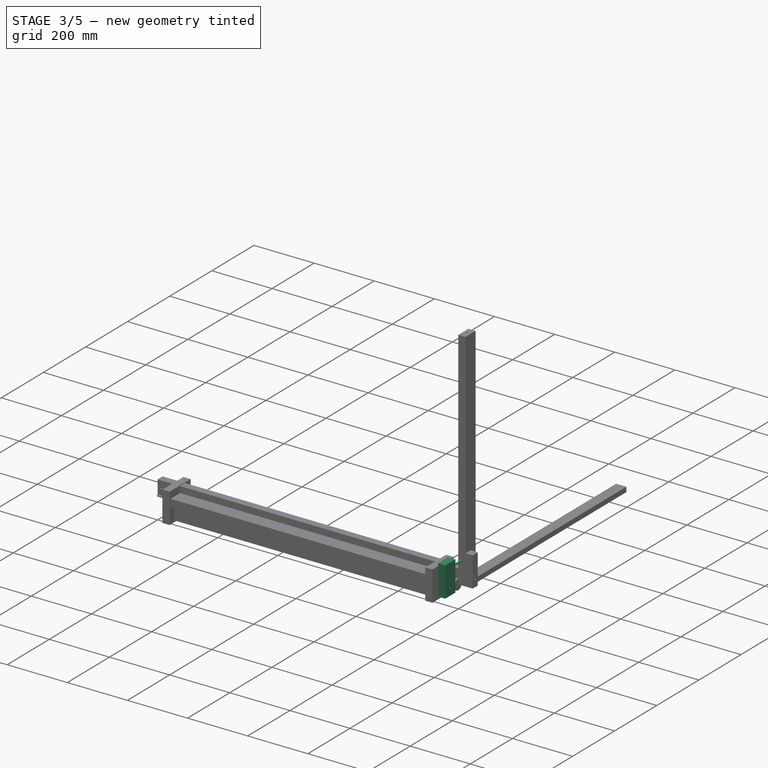
[diagram: stage 3 of 5 — iso view after this stage's code; geometry added in this stage tinted green]
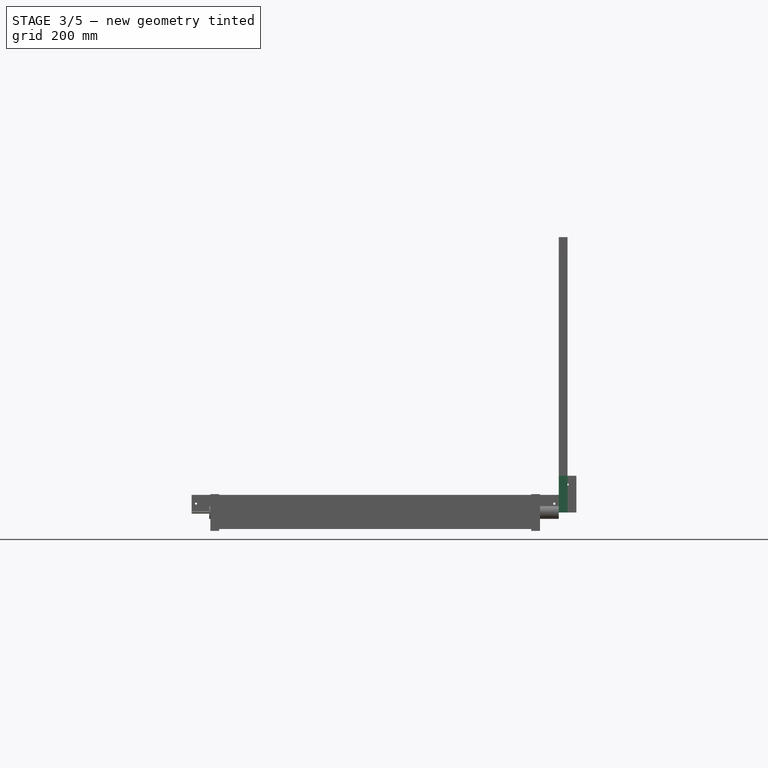
[diagram: stage 3 of 5 — front view after this stage's code; geometry added in this stage tinted green]
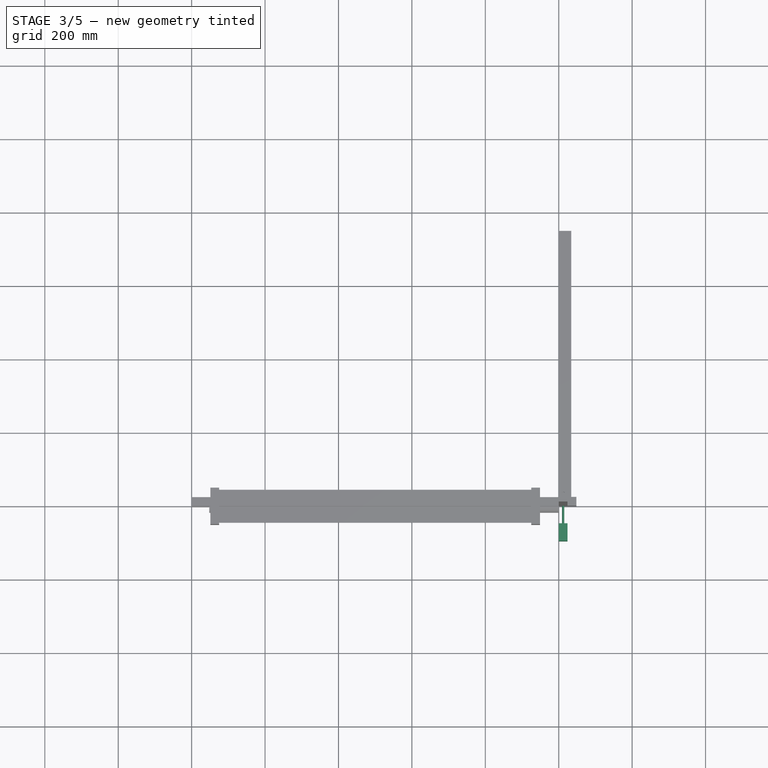
[diagram: stage 3 of 5 — top view after this stage's code; geometry added in this stage tinted green]
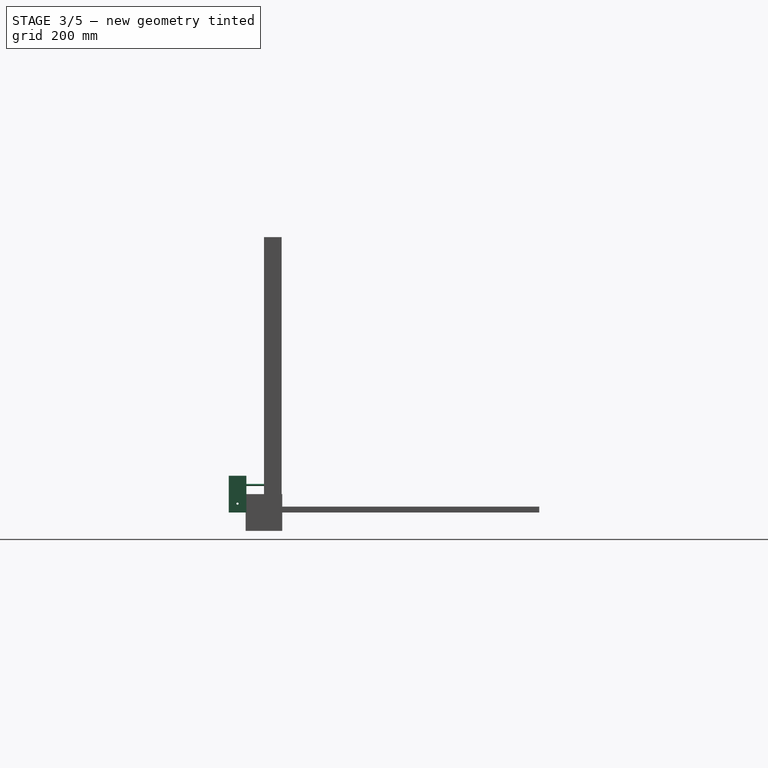
[diagram: stage 3 of 5 — right view after this stage's code; geometry added in this stage tinted green]
FEATURE [PartDesign::Body] Body017  label="brace_l"
  Group = -> [Sketch033,Pad015]
  Origin = -> Origin017
  Placement = pos=(-976,674,174) rot=(0,0,1;0rad)
  Tip = -> Pad015
FEATURE [Sketcher::SketchObject] Sketch034
  MapMode = 5
  Support = -> [XY_Plane018]
  sketch-geometry (4):
    g0: LineSegment StartX=0 StartY=0 StartZ=0 EndX=24 EndY=0 EndZ=0
    g1: LineSegment StartX=24 StartY=0 StartZ=0 EndX=24 EndY=48 EndZ=0
    g2: LineSegment StartX=24 StartY=48 StartZ=0 EndX=0 EndY=48 EndZ=0
    g3: LineSegment StartX=0 StartY=48 StartZ=0 EndX=0 EndY=0 EndZ=0
  constraints (11):
    c: Coincident(g0,g1)
    c: Coincident(g1,g2)
    c: Coincident(g2,g3)
    c: Coincident(g3,g0)
    c: Horizontal(g0)
    c: Horizontal(g2)
    c: Vertical(g1)
    c: Vertical(g3)
    c: Coincident(g0,g-1)
    c: DistanceY(g3,g3) = 48
    c: DistanceX(g0,g0) = 24
FEATURE [PartDesign::Pad] Pad016
  Length = 100
  Length2 = 100
  Profile = -> Sketch034
  Refine = true
  Type = 0
FEATURE [Sketcher::SketchObject] Sketch036
  MapMode = 5
  Support = -> [XY_Plane019]
  sketch-geometry (4):
    g0: LineSegment StartX=0 StartY=0 StartZ=0 EndX=24 EndY=0 EndZ=0
    g1: LineSegment StartX=24 StartY=0 StartZ=0 EndX=24 EndY=48 EndZ=0
    g2: LineSegment StartX=24 StartY=48 StartZ=0 EndX=0 EndY=48 EndZ=0
    g3: LineSegment StartX=0 StartY=48 StartZ=0 EndX=0 EndY=0 EndZ=0
  constraints (11):
    c: Coincident(g0,g1)
    c: Coincident(g1,g2)
    c: Coincident(g2,g3)
    c: Coincident(g3,g0)
    c: Horizontal(g0)
    c: Horizontal(g2)
    c: Vertical(g1)
    c: Vertical(g3)
    c: Coincident(g0,g-1)
    c: DistanceY(g3,g3) = 48
    c: DistanceX(g0,g0) = 24
FEATURE [PartDesign::Pad] Pad017
  Length = 100
  Length2 = 100
  Profile = -> Sketch036
  Refine = true
  Type = 0
FEATURE [Sketcher::SketchObject] Sketch037
  ExternalGeometry = -> [Pad017]
  MapMode = 5
  Placement = pos=(0,0,0) rot=(1,0,0;1.5708rad)
  Support = -> [Pad017]
  sketch-geometry (2):
    g0: LineSegment [constr] StartX=12 StartY=100 StartZ=0 EndX=12 EndY=75 EndZ=0
    g1: Circle CenterX=12 CenterY=75 CenterZ=0 NormalX=0 NormalY=0 NormalZ=1 AngleXU=0 Radius=3
  constraints (6):
    c: PointOnObject(g0,g-3)
    c: Vertical(g0)
    c: Symmetric(g-3,g-3,g0)
    c: DistanceY(g0,g0) = 25
    c: Coincident(g1,g0)
    c: Radius(g1) = 3
FEATURE [PartDesign::Pocket] Pocket019
  BaseFeature = -> Pad017
  Length = 24
  Length2 = 100
  Profile = -> Sketch037
  Refine = true
  Type = 0
FEATURE [PartDesign::Body] Body018  label="pivot_rb"
  Group = -> [Sketch034,Pad016,Sketch035,Pocket018,Sketch039,Pocket020]
  Origin = -> Origin018
  Tip = -> Pocket020
FEATURE [Sketcher::SketchObject] Sketch040
  ExternalGeometry = -> [Pocket019]
  MapMode = 5
  Placement = pos=(0,0,0) rot=(0.57735,-0.57735,-0.57735;2.0944rad)
  Support = -> [Pocket019]
  sketch-geometry (2):
    g0: LineSegment [constr] StartX=-24 StartY=0 StartZ=0 EndX=-24 EndY=24 EndZ=0
    g1: Circle CenterX=-24 CenterY=24 CenterZ=0 NormalX=0 NormalY=0 NormalZ=1 AngleXU=0 Radius=3
  constraints (5):
    c: Vertical(g0)
    c: Symmetric(g-3,g-1,g0)
    c: DistanceY(g0,g0) = 24
    c: Coincident(g1,g0)
    c: Radius(g1) = 3
FEATURE [PartDesign::Pocket] Pocket021
  BaseFeature = -> Pocket019
  Length = 5
  Length2 = 100
  Profile = -> Sketch040
  Refine = true
  Type = 1
FEATURE [PartDesign::Body] Body021  label="pivot_r"
  Group = -> [Boolean004]
  Origin = -> Origin021
  Placement = pos=(-48,674,346) rot=(0,0,1;0rad)
  Tip = -> Boolean004
FEATURE [Sketcher::SketchObject] Sketch041
  MapMode = 5
  Support = -> [XY_Plane024]
  sketch-geometry (4):
    g0: LineSegment StartX=0 StartY=0 StartZ=0 EndX=24 EndY=0 EndZ=0
    g1: LineSegment StartX=24 StartY=0 StartZ=0 EndX=24 EndY=48 EndZ=0
    g2: LineSegment StartX=24 StartY=48 StartZ=0 EndX=0 EndY=48 EndZ=0
    g3: LineSegment StartX=0 StartY=48 StartZ=0 EndX=0 EndY=0 EndZ=0
  constraints (11):
    c: Coincident(g0,g1)
    c: Coincident(g1,g2)
    c: Coincident(g2,g3)
    c: Coincident(g3,g0)
    c: Horizontal(g0)
    c: Horizontal(g2)
    c: Vertical(g1)
    c: Vertical(g3)
    c: Coincident(g0,g-1)
    c: DistanceY(g3,g3) = 48
    c: DistanceX(g0,g0) = 24
FEATURE [Sketcher::SketchObject] Sketch043
  MapMode = 5
  Support = -> [XY_Plane022]
  sketch-geometry (4):
    g0: LineSegment StartX=0 StartY=0 StartZ=0 EndX=24 EndY=0 EndZ=0
    g1: LineSegment StartX=24 StartY=0 StartZ=0 EndX=24 EndY=48 EndZ=0
    g2: LineSegment StartX=24 StartY=48 StartZ=0 EndX=0 EndY=48 EndZ=0
    g3: LineSegment StartX=0 StartY=48 StartZ=0 EndX=0 EndY=0 EndZ=0
  constraints (11):
    c: Coincident(g0,g1)
    c: Coincident(g1,g2)
    c: Coincident(g2,g3)
    c: Coincident(g3,g0)
    c: Horizontal(g0)
    c: Horizontal(g2)
    c: Vertical(g1)
    c: Vertical(g3)
    c: Coincident(g0,g-1)
    c: DistanceY(g3,g3) = 48
    c: DistanceX(g0,g0) = 24
FEATURE [PartDesign::Pad] Pad019
  Length = 100
  Length2 = 100
  Profile = -> Sketch041
  Refine = true
  Type = 0
FEATURE [Sketcher::SketchObject] Sketch044
  ExternalGeometry = -> [Pad019]
  MapMode = 5
  Placement = pos=(0,0,0) rot=(1,0,0;1.5708rad)
  Support = -> [Pad019]
  sketch-geometry (2):
    g0: LineSegment [constr] StartX=12 StartY=100 StartZ=0 EndX=12 EndY=75 EndZ=0
    g1: Circle CenterX=12 CenterY=75 CenterZ=0 NormalX=0 NormalY=0 NormalZ=1 AngleXU=0 Radius=3
  constraints (6):
    c: PointOnObject(g0,g-3)
    c: Vertical(g0)
    c: Symmetric(g-3,g-3,g0)
    c: DistanceY(g0,g0) = 25
    c: Coincident(g1,g0)
    c: Radius(g1) = 3
FEATURE [PartDesign::Pocket] Pocket022
  BaseFeature = -> Pad019
  Length = 24
  Length2 = 100
  Profile = -> Sketch044
  Refine = true
  Type = 0
FEATURE [PartDesign::Pad] Pad020
  Length = 100
  Length2 = 100
  Profile = -> Sketch043
  Refine = true
  Type = 0
FEATURE [Sketcher::SketchObject] Sketch042
  ExternalGeometry = -> [Pad020]
  MapMode = 5
  Placement = pos=(0,0,0) rot=(1,0,0;1.5708rad)
  Support = -> [Pad020]
  sketch-geometry (2):
    g0: LineSegment [constr] StartX=12 StartY=100 StartZ=0 EndX=12 EndY=75 EndZ=0
    g1: Circle CenterX=12 CenterY=75 CenterZ=0 NormalX=0 NormalY=0 NormalZ=1 AngleXU=0 Radius=3
  constraints (6):
    c: PointOnObject(g0,g-3)
    c: Vertical(g0)
    c: Symmetric(g-3,g-3,g0)
    c: DistanceY(g0,g0) = 25
    c: Coincident(g1,g0)
    c: Radius(g1) = 3
FEATURE [PartDesign::Pocket] Pocket023
  BaseFeature = -> Pad020
  Length = 24
  Length2 = 100
  Profile = -> Sketch042
  Refine = true
  Type = 0
FEATURE [Sketcher::SketchObject] Sketch045
  ExternalGeometry = -> [Pocket023]
  MapMode = 5
  Placement = pos=(0,0,0) rot=(0.57735,-0.57735,-0.57735;2.0944rad)
  Support = -> [Pocket023]
  sketch-geometry (2):
    g0: LineSegment [constr] StartX=-24 StartY=0 StartZ=0 EndX=-24 EndY=24 EndZ=0
    g1: Circle CenterX=-24 CenterY=24 CenterZ=0 NormalX=0 NormalY=0 NormalZ=1 AngleXU=0 Radius=3
  constraints (5):
    c: Vertical(g0)
    c: Symmetric(g-3,g-1,g0)
    c: DistanceY(g0,g0) = 24
    c: Coincident(g1,g0)
    c: Radius(g1) = 3
FEATURE [Sketcher::SketchObject] Sketch046
  MapMode = 5
  Placement = pos=(0,0,0) rot=(1,0,0;1.5708rad)
  Support = -> [XZ_Plane025]
  sketch-geometry (1):
    g0: Circle CenterX=0 CenterY=0 CenterZ=0 NormalX=0 NormalY=0 NormalZ=1 AngleXU=0 Radius=3
  constraints (2):
    c: Coincident(g0,g-1)
    c: Radius(g0) = 3
FEATURE [PartDesign::Pad] Pad021
  Length = 96
  Length2 = 100
  Placement = pos=(0,0,0) rot=(1,0,0;1.5708rad)
  Profile = -> Sketch046
  Refine = true
  Type = 0
FEATURE [PartDesign::Body] Body024  label="rod001"
  Group = -> [Sketch046,Pad021]
  Origin = -> Origin024
  Placement = pos=(12,24,75) rot=(0,0,1;0rad)
  Tip = -> Pad021
FEATURE [Sketcher::SketchObject] Sketch047
  ExternalGeometry = -> [Pocket022]
  MapMode = 5
  Placement = pos=(24,0,0) rot=(0.57735,0.57735,0.57735;2.0944rad)
  Support = -> [Pocket022]
  sketch-geometry (2):
    g0: LineSegment [constr] StartX=24 StartY=100 StartZ=0 EndX=24 EndY=24 EndZ=0
    g1: Circle CenterX=24 CenterY=24 CenterZ=0 NormalX=0 NormalY=0 NormalZ=1 AngleXU=0 Radius=3
  constraints (6):
    c: PointOnObject(g0,g-3)
    c: Vertical(g0)
    c: Symmetric(g-3,g-3,g0)
    c: DistanceY(g0,g0) = 76
    c: Coincident(g1,g0)
    c: Radius(g1) = 3
FEATURE [PartDesign::Pocket] Pocket024
  BaseFeature = -> Pocket022
  Length = 5
  Length2 = 100
  Profile = -> Sketch047
  Refine = true
  Type = 1
FEATURE [PartDesign::Body] Body022  label="pivot_rb001"
  Group = -> [Sketch041,Pad019,Sketch044,Pocket022,Sketch047,Pocket024]
  Origin = -> Origin023
  Tip = -> Pocket024
FEATURE [PartDesign::Pocket] Pocket025
  BaseFeature = -> Pocket023
  Length = 5
  Length2 = 100
  Profile = -> Sketch045
  Refine = true
  Type = 1
FEATURE [PartDesign::Body] Body023  label="pivot_rf001"
  Group = -> [Sketch043,Pad020,Sketch042,Pocket023,Sketch045,Pocket025]
  Origin = -> Origin025
  Placement = pos=(24,-48,0) rot=(0,0,1;3.14159rad)
  Tip = -> Pocket025
FEATURE [PartDesign::Boolean] Boolean005
  Group = -> [Body023,Body022,Body024]
  Type = 0
FEATURE [PartDesign::Body] Body025  label="pivot_l"
  Group = -> [Boolean005]
  Origin = -> Origin022
  Placement = pos=(-928,674,346) rot=(0,0,1;0rad)
  Tip = -> Boolean005
FEATURE [Sketcher::SketchObject] Sketch048
  MapMode = 5
  Placement = pos=(0,0,0) rot=(0.57735,0.57735,0.57735;2.0944rad)
  Support = -> [YZ_Plane027]
  sketch-geometry (1):
    g0: Circle CenterX=0 CenterY=0 CenterZ=0 NormalX=0 NormalY=0 NormalZ=1 AngleXU=0 Radius=17.5
  constraints (2):
    c: Coincident(g0,g-1)
    c: Radius(g0) = 17.5
FEATURE [PartDesign::Pad] Pad022
  Length = 952
  Length2 = 100
  Placement = pos=(0,0,0) rot=(0.57735,0.57735,0.57735;2.0944rad)
  Profile = -> Sketch048
  Refine = true
  Reversed = true
  Type = 0
FEATURE [PartDesign::Body] Body026  label="lam_bridge"
  Group = -> [Sketch048,Pad022]
  Origin = -> Origin026
  Placement = pos=(0,650,1252) rot=(0,0,1;0rad)
  Tip = -> Pad022
FEATURE [Sketcher::SketchObject] Sketch049
  MapMode = 5
  Placement = pos=(0,0,0) rot=(0.57735,0.57735,0.57735;2.0944rad)
  Support = -> [YZ_Plane028]
  sketch-geometry (1):
    g0: Circle CenterX=0 CenterY=0 CenterZ=0 NormalX=0 NormalY=0 NormalZ=1 AngleXU=0 Radius=3
  constraints (2):
    c: Coincident(g0,g-1)
    c: Radius(g0) = 3
FEATURE [PartDesign::Pad] Pad023
  Length = 1000
  Length2 = 100
  Placement = pos=(0,0,0) rot=(0.57735,0.57735,0.57735;2.0944rad)
  Profile = -> Sketch049
  Refine = true
  Reversed = true
  Type = 0
FEATURE [PartDesign::Body] Body027  label="lam_rod"
  Group = -> [Sketch049,Pad023]
  Origin = -> Origin027
  Tip = -> Pad023
FEATURE [Sketcher::SketchObject] Sketch050
  MapMode = 5
  Placement = pos=(0,0,0) rot=(0.57735,0.57735,0.57735;2.0944rad)
  Support = -> [YZ_Plane029]
  sketch-geometry (4):
    g0: LineSegment StartX=3 StartY=-3 StartZ=0 EndX=27 EndY=-3 EndZ=0
    g1: LineSegment StartX=27 StartY=-3 StartZ=0 EndX=27 EndY=45 EndZ=0
    g2: LineSegment StartX=27 StartY=45 StartZ=0 EndX=3 EndY=45 EndZ=0
    g3: LineSegment StartX=3 StartY=45 StartZ=0 EndX=3 EndY=-3 EndZ=0
  constraints (12):
    c: Coincident(g0,g1)
    c: Coincident(g1,g2)
    c: Coincident(g2,g3)
    c: Coincident(g3,g0)
    c: Horizontal(g0)
    c: Horizontal(g2)
    c: Vertical(g1)
    c: Vertical(g3)
    c: DistanceX(g0,g0) = 24
    c: DistanceX(g-1,g0) = 3
    c: DistanceY(g3,g3) = 48
    c: DistanceY(g0,g-1) = 3
FEATURE [PartDesign::Pad] Pad024
  Length = 850
  Length2 = 100
  Placement = pos=(0,0,0) rot=(0.57735,0.57735,0.57735;2.0944rad)
  Profile = -> Sketch050
  Refine = true
  Reversed = true
  Type = 0
FEATURE [PartDesign::Body] Body028  label="lam_a"
  Group = -> [Sketch050,Pad024]
  Origin = -> Origin028
  Placement = pos=(-75,0,0) rot=(0,0,1;0rad)
  Tip = -> Pad024
FEATURE [Sketcher::SketchObject] Sketch051
  MapMode = 5
  Placement = pos=(0,0,0) rot=(0.57735,0.57735,0.57735;2.0944rad)
  Support = -> [YZ_Plane030]
  sketch-geometry (4):
    g0: LineSegment StartX=3 StartY=-3 StartZ=0 EndX=27 EndY=-3 EndZ=0
    g1: LineSegment StartX=27 StartY=-3 StartZ=0 EndX=27 EndY=45 EndZ=0
    g2: LineSegment StartX=27 StartY=45 StartZ=0 EndX=3 EndY=45 EndZ=0
    g3: LineSegment StartX=3 StartY=45 StartZ=0 EndX=3 EndY=-3 EndZ=0
  constraints (12):
    c: Coincident(g0,g1)
    c: Coincident(g1,g2)
    c: Coincident(g2,g3)
    c: Coincident(g3,g0)
    c: Horizontal(g0)
    c: Horizontal(g2)
    c: Vertical(g1)
    c: Vertical(g3)
    c: DistanceX(g0,g0) = 24
    c: DistanceX(g-1,g0) = 3
    c: DistanceY(g3,g3) = 48
    c: DistanceY(g0,g-1) = 3
FEATURE [PartDesign::Pad] Pad025
  Length = 850
  Length2 = 100
  Placement = pos=(0,0,0) rot=(0.57735,0.57735,0.57735;2.0944rad)
  Profile = -> Sketch051
  Refine = true
  Reversed = true
  Type = 0
FEATURE [PartDesign::Body] Body029  label="lam_b"
  Group = -> [Sketch051,Pad025]
  Origin = -> Origin029
  Placement = pos=(-75,0,0) rot=(1,0,0;1.5708rad)
  Tip = -> Pad025
FEATURE [Sketcher::SketchObject] Sketch052
  MapMode = 5
  Placement = pos=(0,0,0) rot=(0.57735,0.57735,0.57735;2.0944rad)
  Support = -> [YZ_Plane031]
  sketch-geometry (4):
    g0: LineSegment StartX=3 StartY=-3 StartZ=0 EndX=27 EndY=-3 EndZ=0
    g1: LineSegment StartX=27 StartY=-3 StartZ=0 EndX=27 EndY=45 EndZ=0
    g2: LineSegment StartX=27 StartY=45 StartZ=0 EndX=3 EndY=45 EndZ=0
    g3: LineSegment StartX=3 StartY=45 StartZ=0 EndX=3 EndY=-3 EndZ=0
  constraints (12):
    c: Coincident(g0,g1)
    c: Coincident(g1,g2)
    c: Coincident(g2,g3)
    c: Coincident(g3,g0)
    c: Horizontal(g0)
    c: Horizontal(g2)
    c: Vertical(g1)
    c: Vertical(g3)
    c: DistanceX(g0,g0) = 24
    c: DistanceX(g-1,g0) = 3
    c: DistanceY(g3,g3) = 48
    c: DistanceY(g0,g-1) = 3
FEATURE [PartDesign::Pad] Pad026
  Length = 850
  Length2 = 100
  Placement = pos=(0,0,0) rot=(0.57735,0.57735,0.57735;2.0944rad)
  Profile = -> Sketch052
  Refine = true
  Reversed = true
  Type = 0
FEATURE [PartDesign::Body] Body030  label="lam_c"
  Group = -> [Sketch052,Pad026]
  Origin = -> Origin030
  Placement = pos=(-75,0,0) rot=(1,0,0;3.14159rad)
  Tip = -> Pad026
FEATURE [Sketcher::SketchObject] Sketch053
  MapMode = 5
  Placement = pos=(0,0,0) rot=(0.57735,0.57735,0.57735;2.0944rad)
  Support = -> [YZ_Plane032]
  sketch-geometry (4):
    g0: LineSegment StartX=3 StartY=-3 StartZ=0 EndX=27 EndY=-3 EndZ=0
    g1: LineSegment StartX=27 StartY=-3 StartZ=0 EndX=27 EndY=45 EndZ=0
    g2: LineSegment StartX=27 StartY=45 StartZ=0 EndX=3 EndY=45 EndZ=0
    g3: LineSegment StartX=3 StartY=45 StartZ=0 EndX=3 EndY=-3 EndZ=0
  constraints (12):
    c: Coincident(g0,g1)
    c: Coincident(g1,g2)
    c: Coincident(g2,g3)
    c: Coincident(g3,g0)
    c: Horizontal(g0)
    c: Horizontal(g2)
    c: Vertical(g1)
    c: Vertical(g3)
    c: DistanceX(g0,g0) = 24
    c: DistanceX(g-1,g0) = 3
    c: DistanceY(g3,g3) = 48
    c: DistanceY(g0,g-1) = 3
FEATURE [PartDesign::Pad] Pad027
  Length = 850
  Length2 = 100
  Placement = pos=(0,0,0) rot=(0.57735,0.57735,0.57735;2.0944rad)
  Profile = -> Sketch053
  Refine = true
  Reversed = true
  Type = 0
FEATURE [PartDesign::Body] Body033  label="cover_l"
  Group = -> [Sketch055,Pad029]
  Origin = -> Origin033
  Placement = pos=(-949,0,0) rot=(0,0,1;0rad)
  Tip = -> Pad029
FEATURE [PartDesign::Boolean] Boolean006
  Group = -> [Body027,Body028,Body029,Body030,Body031,Body032,Body033]
  Type = 0
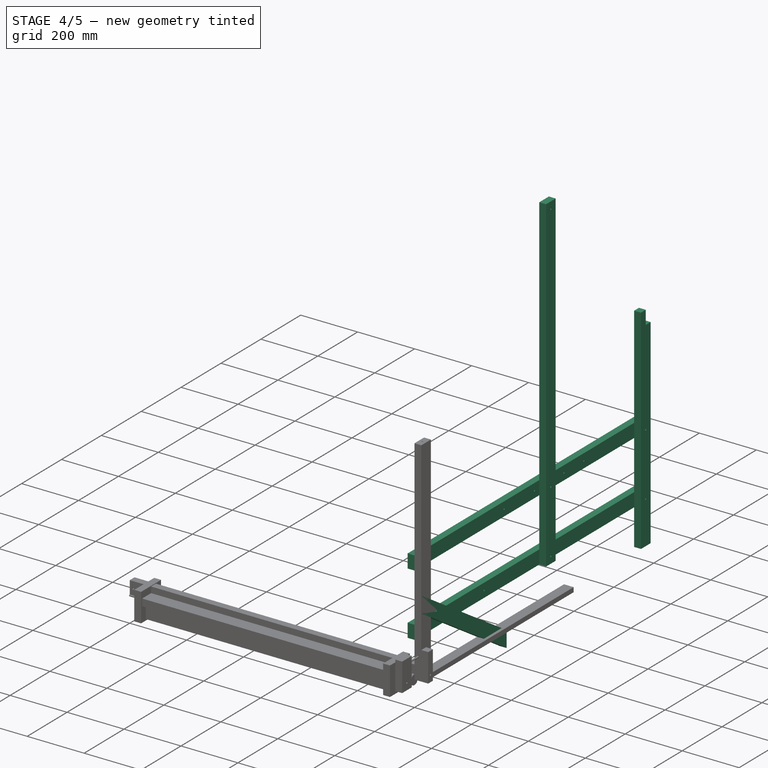
[diagram: stage 4 of 5 — iso view after this stage's code; geometry added in this stage tinted green]
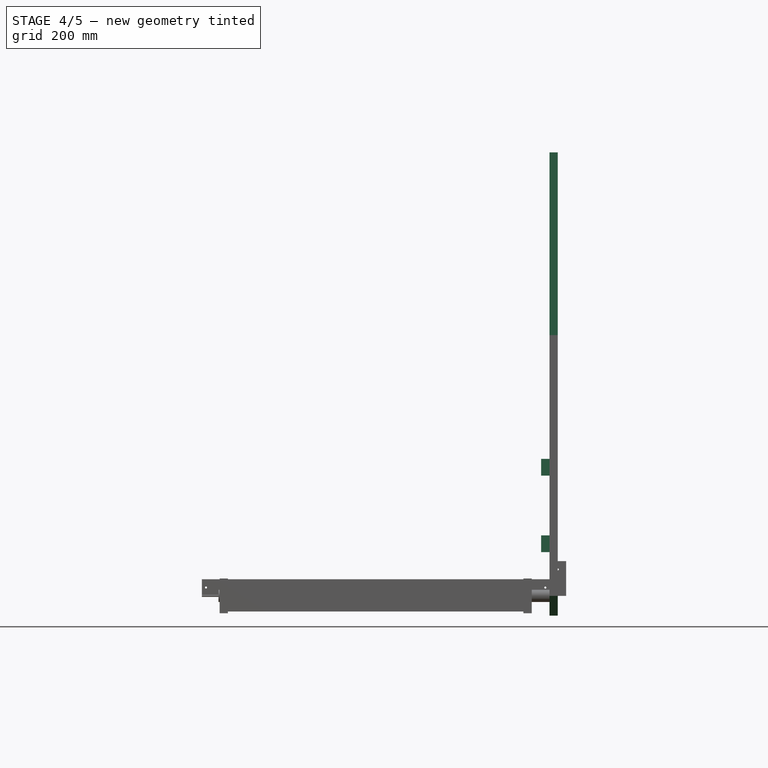
[diagram: stage 4 of 5 — front view after this stage's code; geometry added in this stage tinted green]
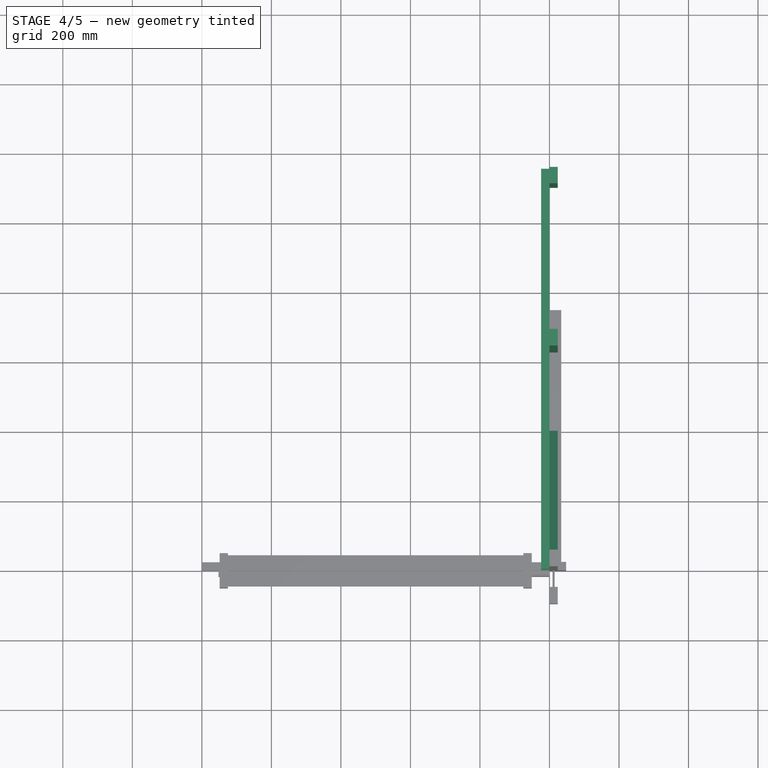
[diagram: stage 4 of 5 — top view after this stage's code; geometry added in this stage tinted green]
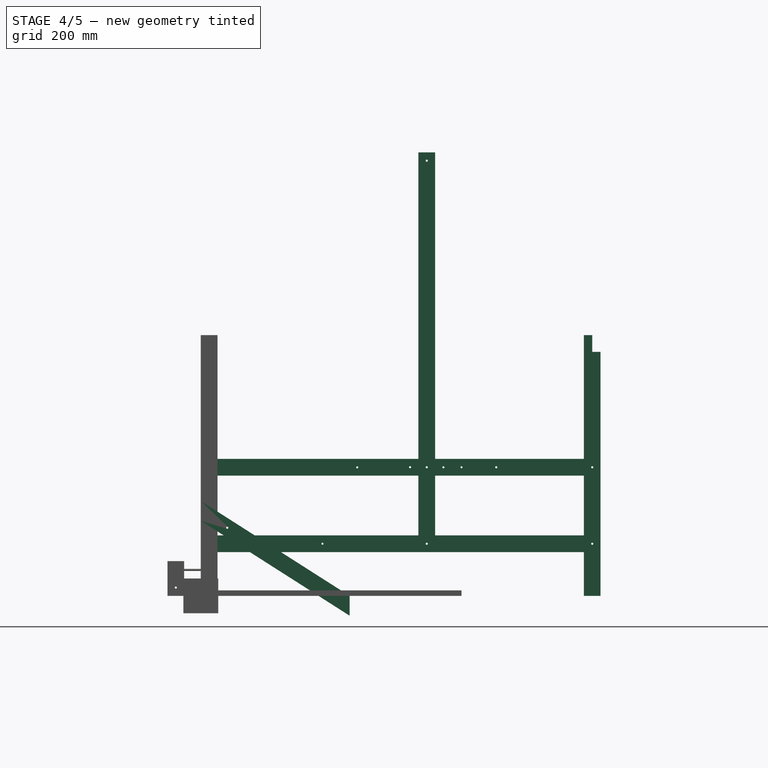
[diagram: stage 4 of 5 — right view after this stage's code; geometry added in this stage tinted green]
FEATURE [Sketcher::SketchObject] Sketch
  MapMode = 5
  Support = -> [XY_Plane]
  sketch-geometry (4):
    g0: LineSegment StartX=0 StartY=0 StartZ=0 EndX=24 EndY=0 EndZ=0
    g1: LineSegment StartX=24 StartY=0 StartZ=0 EndX=24 EndY=48 EndZ=0
    g2: LineSegment StartX=24 StartY=48 StartZ=0 EndX=0 EndY=48 EndZ=0
    g3: LineSegment StartX=0 StartY=48 StartZ=0 EndX=0 EndY=0 EndZ=0
  constraints (11):
    c: Coincident(g0,g1)
    c: Coincident(g1,g2)
    c: Coincident(g2,g3)
    c: Coincident(g3,g0)
    c: Horizontal(g0)
    c: Horizontal(g2)
    c: Vertical(g1)
    c: Vertical(g3)
    c: Coincident(g0,g-1)
    c: DistanceY(g3,g3) = 48
    c: DistanceX(g0,g0) = 24
FEATURE [PartDesign::Pad] Pad
  Length = 750
  Length2 = 100
  Profile = -> Sketch
  Refine = true
  Type = 0
FEATURE [Sketcher::SketchObject] Sketch001
  ExternalGeometry = -> [Pad]
  MapMode = 5
  Placement = pos=(0,0,750) rot=(0,0,1;0rad)
  Support = -> [Pad]
  sketch-geometry (4):
    g0: LineSegment StartX=0 StartY=0 StartZ=0 EndX=24 EndY=0 EndZ=0
    g1: LineSegment StartX=24 StartY=0 StartZ=0 EndX=24 EndY=24 EndZ=0
    g2: LineSegment StartX=24 StartY=24 StartZ=0 EndX=0 EndY=24 EndZ=0
    g3: LineSegment StartX=0 StartY=24 StartZ=0 EndX=0 EndY=0 EndZ=0
  constraints (11):
    c: Coincident(g0,g1)
    c: Coincident(g1,g2)
    c: Coincident(g2,g3)
    c: Coincident(g3,g0)
    c: Horizontal(g0)
    c: Horizontal(g2)
    c: Vertical(g1)
    c: Vertical(g3)
    c: Coincident(g0,g-1)
    c: Equal(g0,g-3)
    c: Equal(g3,g0)
FEATURE [PartDesign::Pocket] Pocket
  BaseFeature = -> Pad
  Length = 48
  Length2 = 100
  Profile = -> Sketch001
  Refine = true
  Type = 0
FEATURE [Sketcher::SketchObject] Sketch002
  ExternalGeometry = -> [Pocket]
  MapMode = 5
  Placement = pos=(24,0,0) rot=(0.57735,0.57735,0.57735;2.0944rad)
  Support = -> [Pocket]
  sketch-geometry (4):
    g0: LineSegment [constr] StartX=24 StartY=370 StartZ=0 EndX=24 EndY=0 EndZ=0
    g1: GeomPoint X=24 Y=150 Z=0
    g2: Circle CenterX=24 CenterY=150 CenterZ=0 NormalX=0 NormalY=0 NormalZ=1 AngleXU=0 Radius=3
    g3: Circle CenterX=24 CenterY=370 CenterZ=0 NormalX=0 NormalY=0 NormalZ=1 AngleXU=0 Radius=3
  constraints (10):
    c: PointOnObject(g0,g-3)
    c: Vertical(g0)
    c: Symmetric(g-1,g-3,g0)
    c: DistanceY(g0,g0) = 370
    c: PointOnObject(g1,g0)
    c: DistanceY(g0,g1) = 150
    c: Coincident(g2,g1)
    c: Radius(g2) = 3
    c: Coincident(g3,g0)
    c: Equal(g3,g2)
FEATURE [PartDesign::Pocket] Pocket001
  BaseFeature = -> Pocket
  Length = 48
  Length2 = 100
  Profile = -> Sketch002
  Refine = true
  Type = 1
FEATURE [PartDesign::Body] Body  label="leg_fr"
  Group = -> [Sketch,Pad,Sketch001,Pocket,Sketch002,Pocket001]
  Origin = -> Origin
  Tip = -> Pocket001
FEATURE [Sketcher::SketchObject] Sketch003
  MapMode = 5
  Support = -> [XY_Plane]
  sketch-geometry (4):
    g0: LineSegment StartX=0 StartY=0 StartZ=0 EndX=24 EndY=0 EndZ=0
    g1: LineSegment StartX=24 StartY=0 StartZ=0 EndX=24 EndY=48 EndZ=0
    g2: LineSegment StartX=24 StartY=48 StartZ=0 EndX=0 EndY=48 EndZ=0
    g3: LineSegment StartX=0 StartY=48 StartZ=0 EndX=0 EndY=0 EndZ=0
  constraints (11):
    c: Coincident(g0,g1)
    c: Coincident(g1,g2)
    c: Coincident(g2,g3)
    c: Coincident(g3,g0)
    c: Horizontal(g0)
    c: Horizontal(g2)
    c: Vertical(g1)
    c: Vertical(g3)
    c: Coincident(g0,g-1)
    c: DistanceY(g3,g3) = 48
    c: DistanceX(g0,g0) = 24
FEATURE [PartDesign::Pad] Pad001
  Length = 750
  Length2 = 100
  Profile = -> Sketch003
  Refine = true
  Type = 0
FEATURE [Sketcher::SketchObject] Sketch004
  ExternalGeometry = -> [Pad001]
  MapMode = 5
  Placement = pos=(0,0,750) rot=(0,0,1;0rad)
  Support = -> [Pad001]
  sketch-geometry (4):
    g0: LineSegment StartX=0 StartY=0 StartZ=0 EndX=24 EndY=0 EndZ=0
    g1: LineSegment StartX=24 StartY=0 StartZ=0 EndX=24 EndY=24 EndZ=0
    g2: LineSegment StartX=24 StartY=24 StartZ=0 EndX=0 EndY=24 EndZ=0
    g3: LineSegment StartX=0 StartY=24 StartZ=0 EndX=0 EndY=0 EndZ=0
  constraints (11):
    c: Coincident(g0,g1)
    c: Coincident(g1,g2)
    c: Coincident(g2,g3)
    c: Coincident(g3,g0)
    c: Horizontal(g0)
    c: Horizontal(g2)
    c: Vertical(g1)
    c: Vertical(g3)
    c: Coincident(g0,g-1)
    c: Equal(g0,g-3)
    c: Equal(g3,g0)
FEATURE [PartDesign::Pocket] Pocket002
  BaseFeature = -> Pad001
  Length = 48
  Length2 = 100
  Profile = -> Sketch004
  Refine = true
  Type = 0
FEATURE [Sketcher::SketchObject] Sketch005
  ExternalGeometry = -> [Pocket002]
  MapMode = 5
  Placement = pos=(24,0,0) rot=(0.57735,0.57735,0.57735;2.0944rad)
  Support = -> [Pocket002]
  sketch-geometry (4):
    g0: LineSegment [constr] StartX=24 StartY=370 StartZ=0 EndX=24 EndY=0 EndZ=0
    g1: GeomPoint X=24 Y=150 Z=0
    g2: Circle CenterX=24 CenterY=150 CenterZ=0 NormalX=0 NormalY=0 NormalZ=1 AngleXU=0 Radius=3
    g3: Circle CenterX=24 CenterY=370 CenterZ=0 NormalX=0 NormalY=0 NormalZ=1 AngleXU=0 Radius=3
  constraints (10):
    c: PointOnObject(g0,g-3)
    c: Vertical(g0)
    c: Symmetric(g-1,g-3,g0)
    c: DistanceY(g0,g0) = 370
    c: PointOnObject(g1,g0)
    c: DistanceY(g0,g1) = 150
    c: Coincident(g2,g1)
    c: Radius(g2) = 3
    c: Coincident(g3,g0)
    c: Equal(g3,g2)
FEATURE [PartDesign::Pocket] Pocket003
  BaseFeature = -> Pocket002
  Length = 48
  Length2 = 100
  Profile = -> Sketch005
  Refine = true
  Type = 1
FEATURE [PartDesign::Body] Body001  label="leg_br"
  Group = -> [Sketch003,Pad001,Sketch004,Pocket002,Sketch005,Pocket003]
  Origin = -> Origin001
  Placement = pos=(24,1150,0) rot=(0,0,1;3.14159rad)
  Tip = -> Pocket003
FEATURE [Sketcher::SketchObject] Sketch006
  MapMode = 5
  Placement = pos=(0,0,0) rot=(1,0,0;1.5708rad)
  Support = -> [XZ_Plane002]
  sketch-geometry (4):
    g0: LineSegment StartX=0 StartY=0 StartZ=0 EndX=24 EndY=0 EndZ=0
    g1: LineSegment StartX=24 StartY=0 StartZ=0 EndX=24 EndY=48 EndZ=0
    g2: LineSegment StartX=24 StartY=48 StartZ=0 EndX=0 EndY=48 EndZ=0
    g3: LineSegment StartX=0 StartY=48 StartZ=0 EndX=0 EndY=0 EndZ=0
  constraints (11):
    c: Coincident(g0,g1)
    c: Coincident(g1,g2)
    c: Coincident(g2,g3)
    c: Coincident(g3,g0)
    c: Horizontal(g0)
    c: Horizontal(g2)
    c: Vertical(g1)
    c: Vertical(g3)
    c: Coincident(g0,g-1)
    c: DistanceY(g3,g3) = 48
    c: DistanceX(g0,g0) = 24
FEATURE [PartDesign::Pad] Pad002
  Length = 1150
  Length2 = 100
  Placement = pos=(0,0,0) rot=(1,0,0;1.5708rad)
  Profile = -> Sketch006
  Refine = true
  Reversed = true
  Type = 0
FEATURE [Sketcher::SketchObject] Sketch007
  ExternalGeometry = -> [Pad002]
  MapMode = 5
  Placement = pos=(24,0,0) rot=(0.707107,0,0.707107;3.14159rad)
  Support = -> [Pad002]
  sketch-geometry (8):
    g0: LineSegment [constr] StartX=24 StartY=0 StartZ=0 EndX=24 EndY=-1126 EndZ=0
    g1: GeomPoint X=24 Y=-24 Z=0
    g2: GeomPoint X=24.0556 Y=-350 Z=0
    g3: GeomPoint X=24 Y=-650 Z=0
    g4: Circle CenterX=24 CenterY=-24 CenterZ=0 NormalX=0 NormalY=0 NormalZ=1 AngleXU=0 Radius=3
    g5: Circle CenterX=24.0556 CenterY=-350 CenterZ=0 NormalX=0 NormalY=0 NormalZ=1 AngleXU=0 Radius=3
    g6: Circle CenterX=24 CenterY=-650 CenterZ=0 NormalX=0 NormalY=0 NormalZ=1 AngleXU=0 Radius=3
    g7: Circle CenterX=24 CenterY=-1126 CenterZ=0 NormalX=0 NormalY=0 NormalZ=1 AngleXU=0 Radius=3
  constraints (17):
    c: PointOnObject(g0,g-3)
    c: Vertical(g0)
    c: Symmetric(g-1,g-3,g0)
    c: DistanceY(g0,g0) = 1126
    c: PointOnObject(g1,g0)
    c: DistanceY(g1,g0) = 24
    c: PointOnObject(g3,g0)
    c: DistanceY(g3,g0) = 650
    c: DistanceY(g2,g0) = 350
    c: Coincident(g4,g1)
    c: Radius(g4) = 3
    c: Coincident(g5,g2)
    c: Coincident(g6,g3)
    c: Coincident(g7,g0)
    c: Equal(g7,g6)
    c: Equal(g6,g5)
    c: Equal(g5,g4)
FEATURE [PartDesign::Pocket] Pocket004
  BaseFeature = -> Pad002
  Length = 5
  Length2 = 100
  Placement = pos=(0,0,0) rot=(1,0,0;1.5708rad)
  Profile = -> Sketch007
  Refine = true
  Type = 1
FEATURE [PartDesign::Body] Body002  label="long_dr"
  Group = -> [Sketch006,Pad002,Sketch007,Pocket004]
  Origin = -> Origin002
  Placement = pos=(-24,0,126) rot=(0,0,1;0rad)
  Tip = -> Pocket004
FEATURE [Sketcher::SketchObject] Sketch008
  MapMode = 5
  Placement = pos=(0,0,0) rot=(1,0,0;1.5708rad)
  Support = -> [XZ_Plane003]
  sketch-geometry (4):
    g0: LineSegment StartX=0 StartY=0 StartZ=0 EndX=24 EndY=0 EndZ=0
    g1: LineSegment StartX=24 StartY=0 StartZ=0 EndX=24 EndY=48 EndZ=0
    g2: LineSegment StartX=24 StartY=48 StartZ=0 EndX=0 EndY=48 EndZ=0
    g3: LineSegment StartX=0 StartY=48 StartZ=0 EndX=0 EndY=0 EndZ=0
  constraints (11):
    c: Coincident(g0,g1)
    c: Coincident(g1,g2)
    c: Coincident(g2,g3)
    c: Coincident(g3,g0)
    c: Horizontal(g0)
    c: Horizontal(g2)
    c: Vertical(g1)
    c: Vertical(g3)
    c: Coincident(g0,g-1)
    c: DistanceY(g3,g3) = 48
    c: DistanceX(g0,g0) = 24
FEATURE [PartDesign::Pad] Pad003
  Length = 1150
  Length2 = 100
  Placement = pos=(0,0,0) rot=(1,0,0;1.5708rad)
  Profile = -> Sketch008
  Refine = true
  Reversed = true
  Type = 0
FEATURE [Sketcher::SketchObject] Sketch009
  ExternalGeometry = -> [Pad003]
  MapMode = 5
  Placement = pos=(24,0,0) rot=(0.707107,0,0.707107;3.14159rad)
  Support = -> [Pad003]
  sketch-geometry (17):
    g0: LineSegment [constr] StartX=24 StartY=0 StartZ=0 EndX=24 EndY=-1126 EndZ=0
    g1: GeomPoint X=24 Y=-24 Z=0
    g2: Circle CenterX=24 CenterY=-24 CenterZ=0 NormalX=0 NormalY=0 NormalZ=1 AngleXU=0 Radius=3
    g3: GeomPoint X=24 Y=-1126 Z=0
    g4: GeomPoint X=24 Y=-650 Z=0
    g5: Circle CenterX=24 CenterY=-650 CenterZ=0 NormalX=0 NormalY=0 NormalZ=1 AngleXU=0 Radius=3
    g6: Circle CenterX=24 CenterY=-1126 CenterZ=0 NormalX=0 NormalY=0 NormalZ=1 AngleXU=0 Radius=3
    g7: GeomPoint X=24 Y=-698 Z=0
    g8: GeomPoint X=24 Y=-750 Z=0
    g9: GeomPoint X=24 Y=-850 Z=0
    g10: GeomPoint X=24 Y=-602 Z=0
    g11: GeomPoint X=23.7087 Y=-450 Z=0
    g12: Circle CenterX=23.7087 CenterY=-450 CenterZ=0 NormalX=0 NormalY=0 NormalZ=1 AngleXU=0 Radius=3
    g13: Circle CenterX=24 CenterY=-602 CenterZ=0 NormalX=0 NormalY=0 NormalZ=1 AngleXU=0 Radius=3
    g14: Circle CenterX=24 CenterY=-698 CenterZ=0 NormalX=0 NormalY=0 NormalZ=1 AngleXU=0 Radius=3
    g15: Circle CenterX=24 CenterY=-750 CenterZ=0 NormalX=0 NormalY=0 NormalZ=1 AngleXU=0 Radius=3
    g16: Circle CenterX=24 CenterY=-850 CenterZ=0 NormalX=0 NormalY=0 NormalZ=1 AngleXU=0 Radius=3
  constraints (35):
    c: PointOnObject(g0,g-3)
    c: Vertical(g0)
    c: Symmetric(g-1,g-3,g0)
    c: DistanceY(g0,g0) = 1126
    c: PointOnObject(g1,g0)
    c: DistanceY(g1,g0) = 24
    c: Coincident(g2,g1)
    c: Radius(g2) = 3
    c: PointOnObject(g3,g0)
    c: DistanceY(g3,g0) = 1126
    c: PointOnObject(g4,g0)
    c: DistanceY(g4,g0) = 650
    c: Coincident(g5,g4)
    c: Coincident(g6,g0)
    c: PointOnObject(g7,g0)
    c: PointOnObject(g8,g0)
    c: PointOnObject(g9,g0)
    c: PointOnObject(g10,g0)
    c: DistanceY(g4,g10) = 48
    c: DistanceY(g9,g4) = 200
    c: DistanceY(g8,g4) = 100
    c: DistanceY(g7,g4) = 48
    c: DistanceY(g11,g0) = 450
    c: Coincident(g12,g11)
    c: Coincident(g13,g10)
    c: Coincident(g14,g7)
    c: Coincident(g15,g8)
    c: Coincident(g16,g9)
    c: Equal(g2,g12)
    c: Equal(g12,g13)
    c: Equal(g13,g5)
    c: Equal(g5,g14)
    c: Equal(g14,g15)
    c: Equal(g15,g16)
    c: Equal(g16,g6)
FEATURE [PartDesign::Pocket] Pocket005
  BaseFeature = -> Pad003
  Length = 5
  Length2 = 100
  Placement = pos=(0,0,0) rot=(1,0,0;1.5708rad)
  Profile = -> Sketch009
  Refine = true
  Type = 1
FEATURE [PartDesign::Body] Body003  label="long_ur"
  Group = -> [Sketch008,Pad003,Sketch009,Pocket005]
  Origin = -> Origin003
  Placement = pos=(-24,0,346) rot=(0,0,1;0rad)
  Tip = -> Pocket005
FEATURE [Sketcher::SketchObject] Sketch010
  MapMode = 5
  Support = -> [XY_Plane004]
  sketch-geometry (4):
    g0: LineSegment StartX=0 StartY=0 StartZ=0 EndX=24 EndY=0 EndZ=0
    g1: LineSegment StartX=24 StartY=0 StartZ=0 EndX=24 EndY=48 EndZ=0
    g2: LineSegment StartX=24 StartY=48 StartZ=0 EndX=0 EndY=48 EndZ=0
    g3: LineSegment StartX=0 StartY=48 StartZ=0 EndX=0 EndY=0 EndZ=0
  constraints (11):
    c: Coincident(g0,g1)
    c: Coincident(g1,g2)
    c: Coincident(g2,g3)
    c: Coincident(g3,g0)
    c: Horizontal(g0)
    c: Horizontal(g2)
    c: Vertical(g1)
    c: Vertical(g3)
    c: Coincident(g0,g-1)
    c: DistanceY(g3,g3) = 48
    c: DistanceX(g0,g0) = 24
FEATURE [PartDesign::Pad] Pad004
  Length = 1150
  Length2 = 100
  Profile = -> Sketch010
  Refine = true
  Type = 0
FEATURE [Sketcher::SketchObject] Sketch011
  ExternalGeometry = -> [Pad004]
  MapMode = 5
  Placement = pos=(24,0,0) rot=(0.57735,0.57735,0.57735;2.0944rad)
  Support = -> [Pad004]
  sketch-geometry (6):
    g0: LineSegment [constr] StartX=24 StartY=0 StartZ=0 EndX=24 EndY=1126 EndZ=0
    g1: GeomPoint X=24 Y=24 Z=0
    g2: GeomPoint X=24 Y=244 Z=0
    g3: Circle CenterX=24 CenterY=244 CenterZ=0 NormalX=0 NormalY=0 NormalZ=1 AngleXU=0 Radius=3
    g4: Circle CenterX=24 CenterY=24 CenterZ=0 NormalX=0 NormalY=0 NormalZ=1 AngleXU=0 Radius=3
    g5: Circle CenterX=24 CenterY=1126 CenterZ=0 NormalX=0 NormalY=0 NormalZ=1 AngleXU=0 Radius=3
  constraints (14):
    c: PointOnObject(g0,g-3)
    c: Vertical(g0)
    c: Symmetric(g-1,g-3,g0)
    c: DistanceY(g0,g0) = 1126
    c: PointOnObject(g1,g0)
    c: DistanceY(g0,g1) = 24
    c: PointOnObject(g2,g0)
    c: DistanceY(g0,g2) = 244
    c: Coincident(g3,g2)
    c: Coincident(g4,g1)
    c: Radius(g4) = 3
    c: Equal(g3,g4)
    c: Coincident(g5,g0)
    c: Equal(g5,g3)
FEATURE [PartDesign::Pocket] Pocket006
  BaseFeature = -> Pad004
  Length = 5
  Length2 = 100
  Profile = -> Sketch011
  Refine = true
  Type = 1
FEATURE [PartDesign::Body] Body004  label="poll_r"
  Group = -> [Sketch010,Pad004,Sketch011,Pocket006]
  Origin = -> Origin004
  Placement = pos=(0,626,126) rot=(0,0,1;0rad)
  Tip = -> Pocket006
FEATURE [PartDesign::Boolean] Boolean
  Group = -> [Body,Body001,Body002,Body003]
  Type = 0
FEATURE [PartDesign::Body] Body015  label="rearbar_u"
  Group = -> [Sketch030,Pad013,Sketch031,Pocket017]
  Origin = -> Origin015
  Placement = pos=(24,1126,702) rot=(0,0,1;0rad)
  Tip = -> Pocket017
FEATURE [PartDesign::Boolean] Boolean001
  BaseFeature = -> Boolean
  Group = -> [Body004]
  Type = 0
FEATURE [PartDesign::Body] Body005  label="lateral_r"
  Group = -> [Boolean,Boolean001]
  Origin = -> Origin005
  Tip = -> Boolean001
FEATURE [Sketcher::SketchObject] Sketch032
  MapMode = 5
  Placement = pos=(0,0,0) rot=(0.57735,0.57735,0.57735;2.0944rad)
  Support = -> [YZ_Plane017]
  sketch-geometry (14):
    g0: LineSegment [constr] StartX=0 StartY=0 StartZ=0 EndX=428 EndY=0 EndZ=0
    g1: LineSegment [constr] StartX=0 StartY=0 StartZ=0 EndX=0 EndY=172 EndZ=0
    g2: LineSegment [constr] StartX=0 StartY=172 StartZ=0 EndX=0 EndY=196 EndZ=0
    g3: LineSegment [constr] StartX=0 StartY=196 StartZ=0 EndX=0 EndY=296 EndZ=0
    g4: LineSegment [constr] StartX=0 StartY=196 StartZ=0 EndX=76 EndY=196 EndZ=0
    g5: Circle [constr] CenterX=76 CenterY=196 CenterZ=0 NormalX=0 NormalY=0 NormalZ=1 AngleXU=0 Radius=24
    g6: LineSegment [constr] StartX=428 StartY=0 StartZ=0 EndX=0 EndY=272.928 EndZ=0
    g7: LineSegment [constr] StartX=0 StartY=215.999 StartZ=0 EndX=428 EndY=-56.9289 EndZ=0
    g8: LineSegment [constr] StartX=428 StartY=0 StartZ=0 EndX=428 EndY=-56.9289 EndZ=0
    g9: LineSegment StartX=0 StartY=272.928 StartZ=0 EndX=428 EndY=0 EndZ=0
    g10: LineSegment StartX=428 StartY=0 StartZ=0 EndX=428 EndY=-56.9289 EndZ=0
    g11: LineSegment StartX=428 StartY=-56.9289 StartZ=0 EndX=0 EndY=215.999 EndZ=0
    g12: LineSegment StartX=0 StartY=215.999 StartZ=0 EndX=0 EndY=272.928 EndZ=0
    g13: Circle CenterX=76 CenterY=196 CenterZ=0 NormalX=0 NormalY=0 NormalZ=1 AngleXU=0 Radius=3
  constraints (39):
    c: Coincident(g0,g-1)
    c: PointOnObject(g0,g-1)
    c: DistanceX(g-1,g0) = 428
    c: Coincident(g1,g-1)
    c: PointOnObject(g1,g-2)
    c: DistanceY(g-1,g1) = 172
    c: Coincident(g2,g1)
    c: Vertical(g2)
    c: Coincident(g3,g2)
    c: Vertical(g3)
    c: DistanceY(g1,g2) = 24
    c: DistanceY(g2,g3) = 100
    c: Coincident(g4,g2)
    c: Horizontal(g4)
    c: DistanceX(g2,g4) = 76
    c: Coincident(g5,g4)
    c: Radius(g5) = 24
    c: Coincident(g6,g0)
    c: Tangent(g5,g6)
    c: PointOnObject(g6,g3)
    c: Parallel(g6,g7)
    c: Tangent(g7,g5)
    c: PointOnObject(g7,g3)
    c: Coincident(g8,g0)
    c: Vertical(g8)
    c: Coincident(g7,g8)
    c: Coincident(g6,g9)
    c: Coincident(g9,g0)
    c: Tangent(g9,g5)
    c: Coincident(g9,g10)
    c: Coincident(g10,g7)
    c: Vertical(g10)
    c: Coincident(g10,g11)
    c: Coincident(g11,g7)
    c: Coincident(g11,g12)
    c: Coincident(g12,g9)
    c: Vertical(g12)
    c: Coincident(g13,g4)
    c: Radius(g13) = 3
FEATURE [PartDesign::Pad] Pad014
  Length = 24
  Length2 = 100
  Placement = pos=(0,0,0) rot=(0.57735,0.57735,0.57735;2.0944rad)
  Profile = -> Sketch032
  Refine = true
  Type = 0
FEATURE [PartDesign::Body] Body016  label="brace_r"
  Group = -> [Sketch032,Pad014]
  Origin = -> Origin016
  Placement = pos=(0,674,174) rot=(0,0,1;0rad)
  Tip = -> Pad014
FEATURE [Sketcher::SketchObject] Sketch033
  MapMode = 5
  Placement = pos=(0,0,0) rot=(0.57735,0.57735,0.57735;2.0944rad)
  Support = -> [YZ_Plane017]
  sketch-geometry (14):
    g0: LineSegment [constr] StartX=0 StartY=0 StartZ=0 EndX=428 EndY=0 EndZ=0
    g1: LineSegment [constr] StartX=0 StartY=0 StartZ=0 EndX=0 EndY=172 EndZ=0
    g2: LineSegment [constr] StartX=0 StartY=172 StartZ=0 EndX=0 EndY=196 EndZ=0
    g3: LineSegment [constr] StartX=0 StartY=196 StartZ=0 EndX=0 EndY=296 EndZ=0
    g4: LineSegment [constr] StartX=0 StartY=196 StartZ=0 EndX=76 EndY=196 EndZ=0
    g5: Circle [constr] CenterX=76 CenterY=196 CenterZ=0 NormalX=0 NormalY=0 NormalZ=1 AngleXU=0 Radius=24
    g6: LineSegment [constr] StartX=428 StartY=0 StartZ=0 EndX=0 EndY=272.928 EndZ=0
    g7: LineSegment [constr] StartX=0 StartY=215.999 StartZ=0 EndX=428 EndY=-56.9289 EndZ=0
    g8: LineSegment [constr] StartX=428 StartY=0 StartZ=0 EndX=428 EndY=-56.9289 EndZ=0
    g9: LineSegment StartX=0 StartY=272.928 StartZ=0 EndX=428 EndY=0 EndZ=0
    g10: LineSegment StartX=428 StartY=0 StartZ=0 EndX=428 EndY=-56.9289 EndZ=0
    g11: LineSegment StartX=428 StartY=-56.9289 StartZ=0 EndX=0 EndY=215.999 EndZ=0
    g12: LineSegment StartX=0 StartY=215.999 StartZ=0 EndX=0 EndY=272.928 EndZ=0
    g13: Circle CenterX=76 CenterY=196 CenterZ=0 NormalX=0 NormalY=0 NormalZ=1 AngleXU=0 Radius=3
  constraints (39):
    c: Coincident(g0,g-1)
    c: PointOnObject(g0,g-1)
    c: DistanceX(g-1,g0) = 428
    c: Coincident(g1,g-1)
    c: PointOnObject(g1,g-2)
    c: DistanceY(g-1,g1) = 172
    c: Coincident(g2,g1)
    c: Vertical(g2)
    c: Coincident(g3,g2)
    c: Vertical(g3)
    c: DistanceY(g1,g2) = 24
    c: DistanceY(g2,g3) = 100
    c: Coincident(g4,g2)
    c: Horizontal(g4)
    c: DistanceX(g2,g4) = 76
    c: Coincident(g5,g4)
    c: Radius(g5) = 24
    c: Coincident(g6,g0)
    c: Tangent(g5,g6)
    c: PointOnObject(g6,g3)
    c: Parallel(g6,g7)
    c: Tangent(g7,g5)
    c: PointOnObject(g7,g3)
    c: Coincident(g8,g0)
    c: Vertical(g8)
    c: Coincident(g7,g8)
    c: Coincident(g6,g9)
    c: Coincident(g9,g0)
    c: Tangent(g9,g5)
    c: Coincident(g9,g10)
    c: Coincident(g10,g7)
    c: Vertical(g10)
    c: Coincident(g10,g11)
    c: Coincident(g11,g7)
    c: Coincident(g11,g12)
    c: Coincident(g12,g9)
    c: Vertical(g12)
    c: Coincident(g13,g4)
    c: Radius(g13) = 3
FEATURE [PartDesign::Pad] Pad015
  Length = 24
  Length2 = 100
  Placement = pos=(0,0,0) rot=(0.57735,0.57735,0.57735;2.0944rad)
  Profile = -> Sketch033
  Refine = true
  Type = 0
FEATURE [Sketcher::SketchObject] Sketch035
  ExternalGeometry = -> [Pad016]
  MapMode = 5
  Placement = pos=(0,0,0) rot=(1,0,0;1.5708rad)
  Support = -> [Pad016]
  sketch-geometry (2):
    g0: LineSegment [constr] StartX=12 StartY=100 StartZ=0 EndX=12 EndY=75 EndZ=0
    g1: Circle CenterX=12 CenterY=75 CenterZ=0 NormalX=0 NormalY=0 NormalZ=1 AngleXU=0 Radius=3
  constraints (6):
    c: PointOnObject(g0,g-3)
    c: Vertical(g0)
    c: Symmetric(g-3,g-3,g0)
    c: DistanceY(g0,g0) = 25
    c: Coincident(g1,g0)
    c: Radius(g1) = 3
FEATURE [PartDesign::Pocket] Pocket018
  BaseFeature = -> Pad016
  Length = 24
  Length2 = 100
  Profile = -> Sketch035
  Refine = true
  Type = 0
FEATURE [Sketcher::SketchObject] Sketch038
  MapMode = 5
  Placement = pos=(0,0,0) rot=(1,0,0;1.5708rad)
  Support = -> [XZ_Plane020]
  sketch-geometry (1):
    g0: Circle CenterX=0 CenterY=0 CenterZ=0 NormalX=0 NormalY=0 NormalZ=1 AngleXU=0 Radius=3
  constraints (2):
    c: Coincident(g0,g-1)
    c: Radius(g0) = 3
FEATURE [PartDesign::Pad] Pad018
  Length = 96
  Length2 = 100
  Placement = pos=(0,0,0) rot=(1,0,0;1.5708rad)
  Profile = -> Sketch038
  Refine = true
  Type = 0
FEATURE [PartDesign::Body] Body020  label="rod"
  Group = -> [Sketch038,Pad018]
  Origin = -> Origin020
  Placement = pos=(12,24,75) rot=(0,0,1;0rad)
  Tip = -> Pad018
FEATURE [Sketcher::SketchObject] Sketch039
  ExternalGeometry = -> [Pocket018]
  MapMode = 5
  Placement = pos=(24,0,0) rot=(0.57735,0.57735,0.57735;2.0944rad)
  Support = -> [Pocket018]
  sketch-geometry (2):
    g0: LineSegment [constr] StartX=24 StartY=100 StartZ=0 EndX=24 EndY=24 EndZ=0
    g1: Circle CenterX=24 CenterY=24 CenterZ=0 NormalX=0 NormalY=0 NormalZ=1 AngleXU=0 Radius=3
  constraints (6):
    c: PointOnObject(g0,g-3)
    c: Vertical(g0)
    c: Symmetric(g-3,g-3,g0)
    c: DistanceY(g0,g0) = 76
    c: Coincident(g1,g0)
    c: Radius(g1) = 3
FEATURE [PartDesign::Pocket] Pocket020
  BaseFeature = -> Pocket018
  Length = 5
  Length2 = 100
  Profile = -> Sketch039
  Refine = true
  Type = 1
FEATURE [PartDesign::Body] Body019  label="pivot_rf"
  Group = -> [Sketch036,Pad017,Sketch037,Pocket019,Sketch040,Pocket021]
  Origin = -> Origin019
  Placement = pos=(24,-48,0) rot=(0,0,1;3.14159rad)
  Tip = -> Pocket021
FEATURE [PartDesign::Boolean] Boolean004
  Group = -> [Body019,Body018,Body020]
  Type = 0
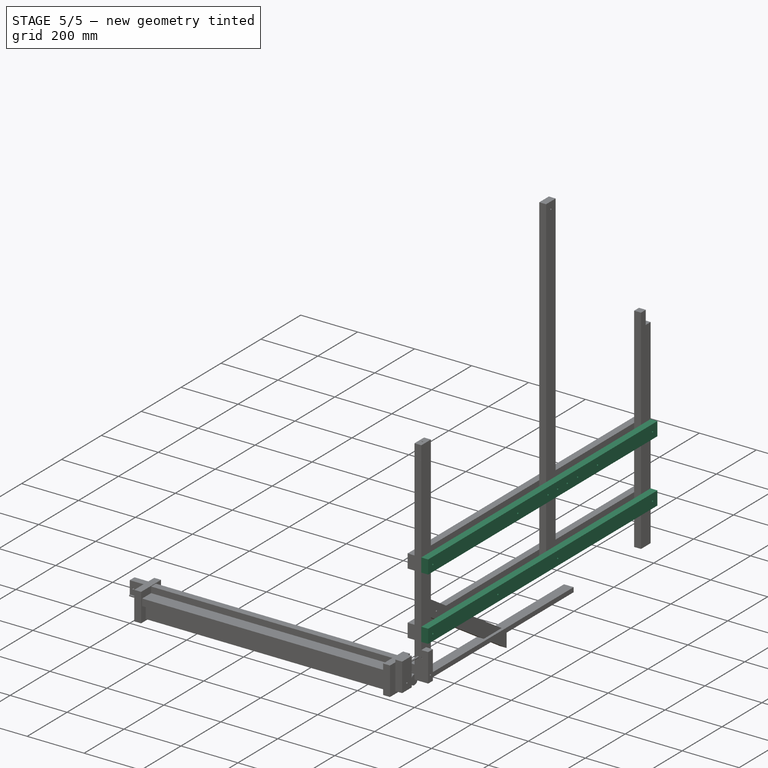
[diagram: stage 5 of 5 — iso view after this stage's code; geometry added in this stage tinted green]
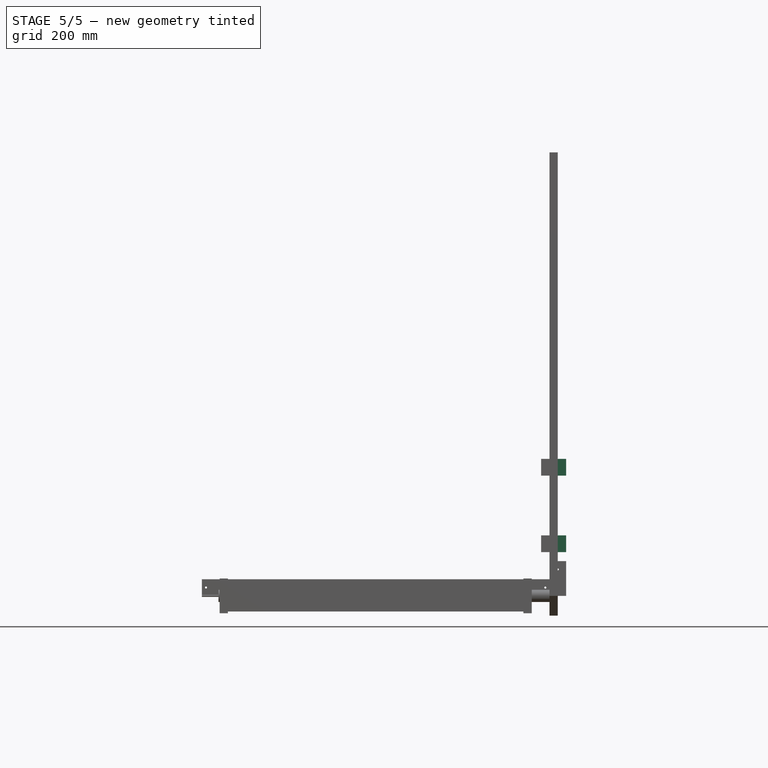
[diagram: stage 5 of 5 — front view after this stage's code; geometry added in this stage tinted green]
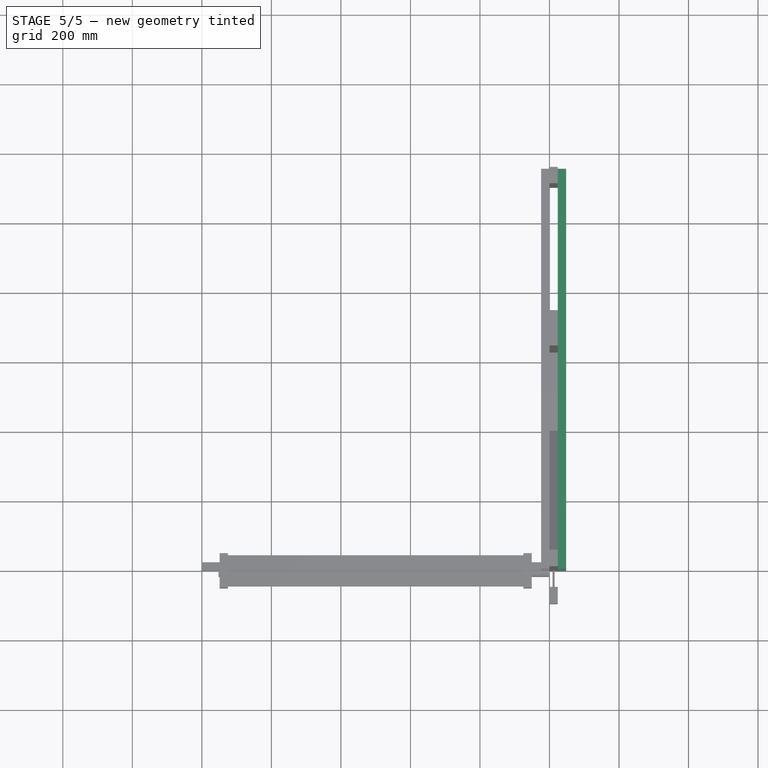
[diagram: stage 5 of 5 — top view after this stage's code; geometry added in this stage tinted green]
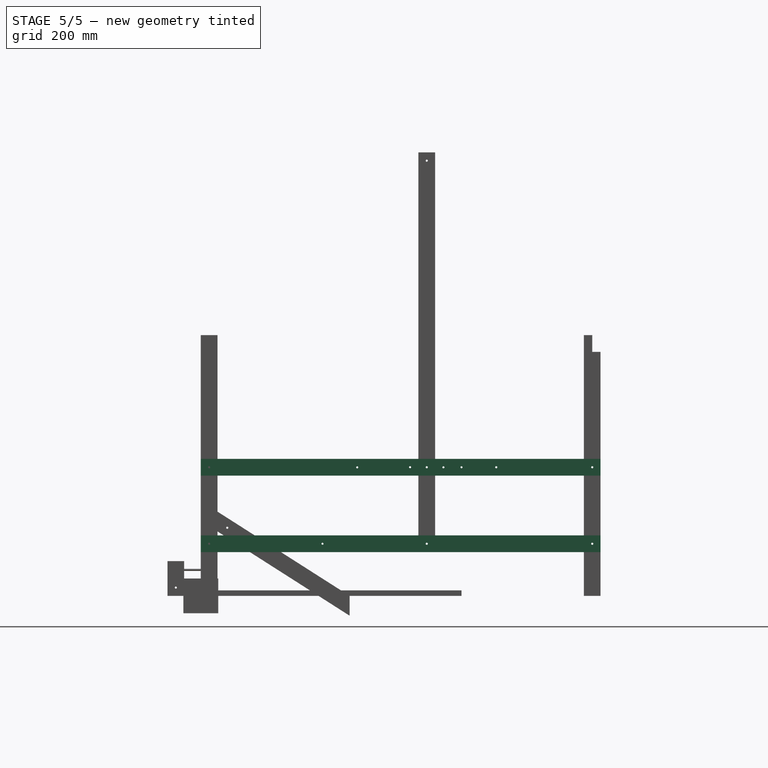
[diagram: stage 5 of 5 — right view after this stage's code; geometry added in this stage tinted green]
FEATURE [Sketcher::SketchObject] Sketch012
  MapMode = 5
  Support = -> [XY_Plane006]
  sketch-geometry (4):
    g0: LineSegment StartX=0 StartY=0 StartZ=0 EndX=24 EndY=0 EndZ=0
    g1: LineSegment StartX=24 StartY=0 StartZ=0 EndX=24 EndY=48 EndZ=0
    g2: LineSegment StartX=24 StartY=48 StartZ=0 EndX=0 EndY=48 EndZ=0
    g3: LineSegment StartX=0 StartY=48 StartZ=0 EndX=0 EndY=0 EndZ=0
  constraints (11):
    c: Coincident(g0,g1)
    c: Coincident(g1,g2)
    c: Coincident(g2,g3)
    c: Coincident(g3,g0)
    c: Horizontal(g0)
    c: Horizontal(g2)
    c: Vertical(g1)
    c: Vertical(g3)
    c: Coincident(g0,g-1)
    c: DistanceY(g3,g3) = 48
    c: DistanceX(g0,g0) = 24
FEATURE [PartDesign::Pad] Pad005
  Length = 750
  Length2 = 100
  Profile = -> Sketch012
  Refine = true
  Type = 0
FEATURE [Sketcher::SketchObject] Sketch014
  ExternalGeometry = -> [Pad005]
  MapMode = 5
  Placement = pos=(0,0,750) rot=(0,0,1;0rad)
  Support = -> [Pad005]
  sketch-geometry (4):
    g0: LineSegment StartX=0 StartY=0 StartZ=0 EndX=24 EndY=0 EndZ=0
    g1: LineSegment StartX=24 StartY=0 StartZ=0 EndX=24 EndY=24 EndZ=0
    g2: LineSegment StartX=24 StartY=24 StartZ=0 EndX=0 EndY=24 EndZ=0
    g3: LineSegment StartX=0 StartY=24 StartZ=0 EndX=0 EndY=0 EndZ=0
  constraints (11):
    c: Coincident(g0,g1)
    c: Coincident(g1,g2)
    c: Coincident(g2,g3)
    c: Coincident(g3,g0)
    c: Horizontal(g0)
    c: Horizontal(g2)
    c: Vertical(g1)
    c: Vertical(g3)
    c: Coincident(g0,g-1)
    c: Equal(g0,g-3)
    c: Equal(g3,g0)
FEATURE [PartDesign::Pocket] Pocket008
  BaseFeature = -> Pad005
  Length = 48
  Length2 = 100
  Profile = -> Sketch014
  Refine = true
  Type = 0
FEATURE [Sketcher::SketchObject] Sketch015
  ExternalGeometry = -> [Pocket008]
  MapMode = 5
  Placement = pos=(24,0,0) rot=(0.57735,0.57735,0.57735;2.0944rad)
  Support = -> [Pocket008]
  sketch-geometry (4):
    g0: LineSegment [constr] StartX=24 StartY=370 StartZ=0 EndX=24 EndY=0 EndZ=0
    g1: GeomPoint X=24 Y=150 Z=0
    g2: Circle CenterX=24 CenterY=150 CenterZ=0 NormalX=0 NormalY=0 NormalZ=1 AngleXU=0 Radius=3
    g3: Circle CenterX=24 CenterY=370 CenterZ=0 NormalX=0 NormalY=0 NormalZ=1 AngleXU=0 Radius=3
  constraints (10):
    c: PointOnObject(g0,g-3)
    c: Vertical(g0)
    c: Symmetric(g-1,g-3,g0)
    c: DistanceY(g0,g0) = 370
    c: PointOnObject(g1,g0)
    c: DistanceY(g0,g1) = 150
    c: Coincident(g2,g1)
    c: Radius(g2) = 3
    c: Coincident(g3,g0)
    c: Equal(g3,g2)
FEATURE [PartDesign::Pocket] Pocket007
  BaseFeature = -> Pocket008
  Length = 48
  Length2 = 100
  Profile = -> Sketch015
  Refine = true
  Type = 1
FEATURE [Sketcher::SketchObject] Sketch016
  MapMode = 5
  Placement = pos=(0,0,0) rot=(1,0,0;1.5708rad)
  Support = -> [XZ_Plane009]
  sketch-geometry (4):
    g0: LineSegment StartX=0 StartY=0 StartZ=0 EndX=24 EndY=0 EndZ=0
    g1: LineSegment StartX=24 StartY=0 StartZ=0 EndX=24 EndY=48 EndZ=0
    g2: LineSegment StartX=24 StartY=48 StartZ=0 EndX=0 EndY=48 EndZ=0
    g3: LineSegment StartX=0 StartY=48 StartZ=0 EndX=0 EndY=0 EndZ=0
  constraints (11):
    c: Coincident(g0,g1)
    c: Coincident(g1,g2)
    c: Coincident(g2,g3)
    c: Coincident(g3,g0)
    c: Horizontal(g0)
    c: Horizontal(g2)
    c: Vertical(g1)
    c: Vertical(g3)
    c: Coincident(g0,g-1)
    c: DistanceY(g3,g3) = 48
    c: DistanceX(g0,g0) = 24
FEATURE [Sketcher::SketchObject] Sketch017
  MapMode = 5
  Support = -> [XY_Plane006]
  sketch-geometry (4):
    g0: LineSegment StartX=0 StartY=0 StartZ=0 EndX=24 EndY=0 EndZ=0
    g1: LineSegment StartX=24 StartY=0 StartZ=0 EndX=24 EndY=48 EndZ=0
    g2: LineSegment StartX=24 StartY=48 StartZ=0 EndX=0 EndY=48 EndZ=0
    g3: LineSegment StartX=0 StartY=48 StartZ=0 EndX=0 EndY=0 EndZ=0
  constraints (11):
    c: Coincident(g0,g1)
    c: Coincident(g1,g2)
    c: Coincident(g2,g3)
    c: Coincident(g3,g0)
    c: Horizontal(g0)
    c: Horizontal(g2)
    c: Vertical(g1)
    c: Vertical(g3)
    c: Coincident(g0,g-1)
    c: DistanceY(g3,g3) = 48
    c: DistanceX(g0,g0) = 24
FEATURE [PartDesign::Pad] Pad006
  Length = 750
  Length2 = 100
  Profile = -> Sketch017
  Refine = true
  Type = 0
FEATURE [PartDesign::Body] Body008  label="leg_br001"
  Group = -> [Sketch012,Pad005,Sketch014,Pocket008,Sketch015,Pocket007]
  Origin = -> Origin008
  Placement = pos=(24,1150,0) rot=(0,0,1;3.14159rad)
  Tip = -> Pocket007
FEATURE [Sketcher::SketchObject] Sketch018
  ExternalGeometry = -> [Pad006]
  MapMode = 5
  Placement = pos=(0,0,750) rot=(0,0,1;0rad)
  Support = -> [Pad006]
  sketch-geometry (4):
    g0: LineSegment StartX=0 StartY=0 StartZ=0 EndX=24 EndY=0 EndZ=0
    g1: LineSegment StartX=24 StartY=0 StartZ=0 EndX=24 EndY=24 EndZ=0
    g2: LineSegment StartX=24 StartY=24 StartZ=0 EndX=0 EndY=24 EndZ=0
    g3: LineSegment StartX=0 StartY=24 StartZ=0 EndX=0 EndY=0 EndZ=0
  constraints (11):
    c: Coincident(g0,g1)
    c: Coincident(g1,g2)
    c: Coincident(g2,g3)
    c: Coincident(g3,g0)
    c: Horizontal(g0)
    c: Horizontal(g2)
    c: Vertical(g1)
    c: Vertical(g3)
    c: Coincident(g0,g-1)
    c: Equal(g0,g-3)
    c: Equal(g3,g0)
FEATURE [Sketcher::SketchObject] Sketch019
  MapMode = 5
  Support = -> [XY_Plane007]
  sketch-geometry (4):
    g0: LineSegment StartX=0 StartY=0 StartZ=0 EndX=24 EndY=0 EndZ=0
    g1: LineSegment StartX=24 StartY=0 StartZ=0 EndX=24 EndY=48 EndZ=0
    g2: LineSegment StartX=24 StartY=48 StartZ=0 EndX=0 EndY=48 EndZ=0
    g3: LineSegment StartX=0 StartY=48 StartZ=0 EndX=0 EndY=0 EndZ=0
  constraints (11):
    c: Coincident(g0,g1)
    c: Coincident(g1,g2)
    c: Coincident(g2,g3)
    c: Coincident(g3,g0)
    c: Horizontal(g0)
    c: Horizontal(g2)
    c: Vertical(g1)
    c: Vertical(g3)
    c: Coincident(g0,g-1)
    c: DistanceY(g3,g3) = 48
    c: DistanceX(g0,g0) = 24
FEATURE [PartDesign::Pocket] Pocket012
  BaseFeature = -> Pad006
  Length = 48
  Length2 = 100
  Profile = -> Sketch018
  Refine = true
  Type = 0
FEATURE [Sketcher::SketchObject] Sketch020
  MapMode = 5
  Placement = pos=(0,0,0) rot=(1,0,0;1.5708rad)
  Support = -> [XZ_Plane007]
  sketch-geometry (4):
    g0: LineSegment StartX=0 StartY=0 StartZ=0 EndX=24 EndY=0 EndZ=0
    g1: LineSegment StartX=24 StartY=0 StartZ=0 EndX=24 EndY=48 EndZ=0
    g2: LineSegment StartX=24 StartY=48 StartZ=0 EndX=0 EndY=48 EndZ=0
    g3: LineSegment StartX=0 StartY=48 StartZ=0 EndX=0 EndY=0 EndZ=0
  constraints (11):
    c: Coincident(g0,g1)
    c: Coincident(g1,g2)
    c: Coincident(g2,g3)
    c: Coincident(g3,g0)
    c: Horizontal(g0)
    c: Horizontal(g2)
    c: Vertical(g1)
    c: Vertical(g3)
    c: Coincident(g0,g-1)
    c: DistanceY(g3,g3) = 48
    c: DistanceX(g0,g0) = 24
FEATURE [Sketcher::SketchObject] Sketch021
  ExternalGeometry = -> [Pocket012]
  MapMode = 5
  Placement = pos=(24,0,0) rot=(0.57735,0.57735,0.57735;2.0944rad)
  Support = -> [Pocket012]
  sketch-geometry (4):
    g0: LineSegment [constr] StartX=24 StartY=370 StartZ=0 EndX=24 EndY=0 EndZ=0
    g1: GeomPoint X=24 Y=150 Z=0
    g2: Circle CenterX=24 CenterY=150 CenterZ=0 NormalX=0 NormalY=0 NormalZ=1 AngleXU=0 Radius=3
    g3: Circle CenterX=24 CenterY=370 CenterZ=0 NormalX=0 NormalY=0 NormalZ=1 AngleXU=0 Radius=3
  constraints (10):
    c: PointOnObject(g0,g-3)
    c: Vertical(g0)
    c: Symmetric(g-1,g-3,g0)
    c: DistanceY(g0,g0) = 370
    c: PointOnObject(g1,g0)
    c: DistanceY(g0,g1) = 150
    c: Coincident(g2,g1)
    c: Radius(g2) = 3
    c: Coincident(g3,g0)
    c: Equal(g3,g2)
FEATURE [PartDesign::Pocket] Pocket013
  BaseFeature = -> Pocket012
  Length = 48
  Length2 = 100
  Profile = -> Sketch021
  Refine = true
  Type = 1
FEATURE [PartDesign::Body] Body007  label="leg_fr001"
  Group = -> [Sketch017,Pad006,Sketch018,Pocket012,Sketch021,Pocket013]
  Origin = -> Origin007
  Tip = -> Pocket013
FEATURE [PartDesign::Pad] Pad007
  Length = 1150
  Length2 = 100
  Placement = pos=(0,0,0) rot=(1,0,0;1.5708rad)
  Profile = -> Sketch020
  Refine = true
  Reversed = true
  Type = 0
FEATURE [Sketcher::SketchObject] Sketch022
  ExternalGeometry = -> [Pad007]
  MapMode = 5
  Placement = pos=(24,0,0) rot=(0.707107,0,0.707107;3.14159rad)
  Support = -> [Pad007]
  sketch-geometry (8):
    g0: LineSegment [constr] StartX=24 StartY=0 StartZ=0 EndX=24 EndY=-1126 EndZ=0
    g1: GeomPoint X=24 Y=-24 Z=0
    g2: GeomPoint X=24.0556 Y=-350 Z=0
    g3: GeomPoint X=24 Y=-650 Z=0
    g4: Circle CenterX=24 CenterY=-24 CenterZ=0 NormalX=0 NormalY=0 NormalZ=1 AngleXU=0 Radius=3
    g5: Circle CenterX=24.0556 CenterY=-350 CenterZ=0 NormalX=0 NormalY=0 NormalZ=1 AngleXU=0 Radius=3
    g6: Circle CenterX=24 CenterY=-650 CenterZ=0 NormalX=0 NormalY=0 NormalZ=1 AngleXU=0 Radius=3
    g7: Circle CenterX=24 CenterY=-1126 CenterZ=0 NormalX=0 NormalY=0 NormalZ=1 AngleXU=0 Radius=3
  constraints (17):
    c: PointOnObject(g0,g-3)
    c: Vertical(g0)
    c: Symmetric(g-1,g-3,g0)
    c: DistanceY(g0,g0) = 1126
    c: PointOnObject(g1,g0)
    c: DistanceY(g1,g0) = 24
    c: PointOnObject(g3,g0)
    c: DistanceY(g3,g0) = 650
    c: DistanceY(g2,g0) = 350
    c: Coincident(g4,g1)
    c: Radius(g4) = 3
    c: Coincident(g5,g2)
    c: Coincident(g6,g3)
    c: Coincident(g7,g0)
    c: Equal(g7,g6)
    c: Equal(g6,g5)
    c: Equal(g5,g4)
FEATURE [PartDesign::Pocket] Pocket011
  BaseFeature = -> Pad007
  Length = 5
  Length2 = 100
  Placement = pos=(0,0,0) rot=(1,0,0;1.5708rad)
  Profile = -> Sketch022
  Refine = true
  Type = 1
FEATURE [PartDesign::Body] Body006  label="long_dr001"
  Group = -> [Sketch020,Pad007,Sketch022,Pocket011]
  Origin = -> Origin006
  Placement = pos=(24,0,126) rot=(0,0,1;0rad)
  Tip = -> Pocket011
FEATURE [PartDesign::Pad] Pad008
  Length = 1150
  Length2 = 100
  Profile = -> Sketch019
  Refine = true
  Type = 0
FEATURE [Sketcher::SketchObject] Sketch013
  ExternalGeometry = -> [Pad008]
  MapMode = 5
  Placement = pos=(24,0,0) rot=(0.57735,0.57735,0.57735;2.0944rad)
  Support = -> [Pad008]
  sketch-geometry (6):
    g0: LineSegment [constr] StartX=24 StartY=0 StartZ=0 EndX=24 EndY=1126 EndZ=0
    g1: GeomPoint X=24 Y=24 Z=0
    g2: GeomPoint X=24 Y=244 Z=0
    g3: Circle CenterX=24 CenterY=244 CenterZ=0 NormalX=0 NormalY=0 NormalZ=1 AngleXU=0 Radius=3
    g4: Circle CenterX=24 CenterY=24 CenterZ=0 NormalX=0 NormalY=0 NormalZ=1 AngleXU=0 Radius=3
    g5: Circle CenterX=24 CenterY=1126 CenterZ=0 NormalX=0 NormalY=0 NormalZ=1 AngleXU=0 Radius=3
  constraints (14):
    c: PointOnObject(g0,g-3)
    c: Vertical(g0)
    c: Symmetric(g-1,g-3,g0)
    c: DistanceY(g0,g0) = 1126
    c: PointOnObject(g1,g0)
    c: DistanceY(g0,g1) = 24
    c: PointOnObject(g2,g0)
    c: DistanceY(g0,g2) = 244
    c: Coincident(g3,g2)
    c: Coincident(g4,g1)
    c: Radius(g4) = 3
    c: Equal(g3,g4)
    c: Coincident(g5,g0)
    c: Equal(g5,g3)
FEATURE [PartDesign::Pocket] Pocket009
  BaseFeature = -> Pad008
  Length = 5
  Length2 = 100
  Profile = -> Sketch013
  Refine = true
  Type = 1
FEATURE [PartDesign::Body] Body010  label="poll_r001"
  Group = -> [Sketch019,Pad008,Sketch013,Pocket009]
  Origin = -> Origin009
  Placement = pos=(0,626,126) rot=(0,0,1;0rad)
  Tip = -> Pocket009
FEATURE [PartDesign::Pad] Pad009
  Length = 1150
  Length2 = 100
  Placement = pos=(0,0,0) rot=(1,0,0;1.5708rad)
  Profile = -> Sketch016
  Refine = true
  Reversed = true
  Type = 0
FEATURE [Sketcher::SketchObject] Sketch023
  ExternalGeometry = -> [Pad009]
  MapMode = 5
  Placement = pos=(24,0,0) rot=(0.707107,0,0.707107;3.14159rad)
  Support = -> [Pad009]
  sketch-geometry (17):
    g0: LineSegment [constr] StartX=24 StartY=0 StartZ=0 EndX=24 EndY=-1126 EndZ=0
    g1: GeomPoint X=24 Y=-24 Z=0
    g2: Circle CenterX=24 CenterY=-24 CenterZ=0 NormalX=0 NormalY=0 NormalZ=1 AngleXU=0 Radius=3
    g3: GeomPoint X=24 Y=-1126 Z=0
    g4: GeomPoint X=24 Y=-650 Z=0
    g5: Circle CenterX=24 CenterY=-650 CenterZ=0 NormalX=0 NormalY=0 NormalZ=1 AngleXU=0 Radius=3
    g6: Circle CenterX=24 CenterY=-1126 CenterZ=0 NormalX=0 NormalY=0 NormalZ=1 AngleXU=0 Radius=3
    g7: GeomPoint X=24 Y=-698 Z=0
    g8: GeomPoint X=24 Y=-750 Z=0
    g9: GeomPoint X=24 Y=-850 Z=0
    g10: GeomPoint X=24 Y=-602 Z=0
    g11: GeomPoint X=23.7087 Y=-450 Z=0
    g12: Circle CenterX=23.7087 CenterY=-450 CenterZ=0 NormalX=0 NormalY=0 NormalZ=1 AngleXU=0 Radius=3
    g13: Circle CenterX=24 CenterY=-602 CenterZ=0 NormalX=0 NormalY=0 NormalZ=1 AngleXU=0 Radius=3
    g14: Circle CenterX=24 CenterY=-698 CenterZ=0 NormalX=0 NormalY=0 NormalZ=1 AngleXU=0 Radius=3
    g15: Circle CenterX=24 CenterY=-750 CenterZ=0 NormalX=0 NormalY=0 NormalZ=1 AngleXU=0 Radius=3
    g16: Circle CenterX=24 CenterY=-850 CenterZ=0 NormalX=0 NormalY=0 NormalZ=1 AngleXU=0 Radius=3
  constraints (35):
    c: PointOnObject(g0,g-3)
    c: Vertical(g0)
    c: Symmetric(g-1,g-3,g0)
    c: DistanceY(g0,g0) = 1126
    c: PointOnObject(g1,g0)
    c: DistanceY(g1,g0) = 24
    c: Coincident(g2,g1)
    c: Radius(g2) = 3
    c: PointOnObject(g3,g0)
    c: DistanceY(g3,g0) = 1126
    c: PointOnObject(g4,g0)
    c: DistanceY(g4,g0) = 650
    c: Coincident(g5,g4)
    c: Coincident(g6,g0)
    c: PointOnObject(g7,g0)
    c: PointOnObject(g8,g0)
    c: PointOnObject(g9,g0)
    c: PointOnObject(g10,g0)
    c: DistanceY(g4,g10) = 48
    c: DistanceY(g9,g4) = 200
    c: DistanceY(g8,g4) = 100
    c: DistanceY(g7,g4) = 48
    c: DistanceY(g11,g0) = 450
    c: Coincident(g12,g11)
    c: Coincident(g13,g10)
    c: Coincident(g14,g7)
    c: Coincident(g15,g8)
    c: Coincident(g16,g9)
    c: Equal(g2,g12)
    c: Equal(g12,g13)
    c: Equal(g13,g5)
    c: Equal(g5,g14)
    c: Equal(g14,g15)
    c: Equal(g15,g16)
    c: Equal(g16,g6)
FEATURE [PartDesign::Pocket] Pocket010
  BaseFeature = -> Pad009
  Length = 5
  Length2 = 100
  Placement = pos=(0,0,0) rot=(1,0,0;1.5708rad)
  Profile = -> Sketch023
  Refine = true
  Type = 1
FEATURE [PartDesign::Body] Body011  label="long_ur001"
  Group = -> [Sketch016,Pad009,Sketch023,Pocket010]
  Origin = -> Origin010
  Placement = pos=(24,0,346) rot=(0,0,1;0rad)
  Tip = -> Pocket010
FEATURE [PartDesign::Boolean] Boolean002
  Group = -> [Body007,Body008,Body006,Body011]
  Type = 0
FEATURE [PartDesign::Boolean] Boolean003
  BaseFeature = -> Boolean002
  Group = -> [Body010]
  Type = 0
FEATURE [Sketcher::SketchObject] Sketch027
  MapMode = 5
  Placement = pos=(0,0,0) rot=(0.57735,0.57735,0.57735;2.0944rad)
  Support = -> [YZ_Plane012]
  sketch-geometry (4):
    g0: LineSegment StartX=0 StartY=0 StartZ=0 EndX=24 EndY=0 EndZ=0
    g1: LineSegment StartX=24 StartY=0 StartZ=0 EndX=24 EndY=48 EndZ=0
    g2: LineSegment StartX=24 StartY=48 StartZ=0 EndX=0 EndY=48 EndZ=0
    g3: LineSegment StartX=0 StartY=48 StartZ=0 EndX=0 EndY=0 EndZ=0
  constraints (11):
    c: Coincident(g0,g1)
    c: Coincident(g1,g2)
    c: Coincident(g2,g3)
    c: Coincident(g3,g0)
    c: Horizontal(g0)
    c: Horizontal(g2)
    c: Vertical(g1)
    c: Vertical(g3)
    c: Coincident(g0,g-1)
    c: DistanceY(g3,g3) = 48
    c: DistanceX(g0,g0) = 24
FEATURE [PartDesign::Pad] Pad011
  Length = 1000
  Length2 = 100
  Placement = pos=(0,0,0) rot=(0.57735,0.57735,0.57735;2.0944rad)
  Profile = -> Sketch027
  Refine = true
  Reversed = true
  Type = 0
FEATURE [Sketcher::SketchObject] Sketch026
  ExternalGeometry = -> [Pad011]
  MapMode = 5
  Placement = pos=(0,0,0) rot=(-0.57735,-0.57735,0.57735;4.18879rad)
  Support = -> [Pad011]
  sketch-geometry (6):
    g0: LineSegment [constr] StartX=-24 StartY=0 StartZ=0 EndX=-24 EndY=-988 EndZ=0
    g1: GeomPoint X=-24 Y=-12 Z=0
    g2: GeomPoint X=-24 Y=0 Z=0
    g3: GeomPoint X=-24 Y=-12 Z=0
    g4: Circle CenterX=-24 CenterY=-12 CenterZ=0 NormalX=0 NormalY=0 NormalZ=1 AngleXU=0 Radius=3
    g5: Circle CenterX=-24 CenterY=-988 CenterZ=0 NormalX=0 NormalY=0 NormalZ=1 AngleXU=0 Radius=3
  constraints (11):
    c: Vertical(g0)
    c: Symmetric(g-3,g-1,g0)
    c: DistanceY(g0,g0) = 988
    c: PointOnObject(g1,g0)
    c: Coincident(g2,g0)
    c: Coincident(g3,g1)
    c: DistanceY(g1,g0) = 12
    c: Coincident(g4,g1)
    c: Radius(g4) = 3
    c: Coincident(g5,g0)
    c: Equal(g5,g4)
FEATURE [PartDesign::Pocket] Pocket015
  BaseFeature = -> Pad011
  Length = 5
  Length2 = 100
  Placement = pos=(0,0,0) rot=(0.57735,0.57735,0.57735;2.0944rad)
  Profile = -> Sketch026
  Refine = true
  Type = 1
FEATURE [PartDesign::Body] Body013  label="frontbar_u"
  Group = -> [Sketch027,Pad011,Sketch026,Pocket015]
  Origin = -> Origin013
  Placement = pos=(24,0,702) rot=(0,0,1;0rad)
  Tip = -> Pocket015
FEATURE [Sketcher::SketchObject] Sketch029
  MapMode = 5
  Placement = pos=(0,0,0) rot=(0.57735,0.57735,0.57735;2.0944rad)
  Support = -> [YZ_Plane014]
  sketch-geometry (4):
    g0: LineSegment StartX=0 StartY=0 StartZ=0 EndX=24 EndY=0 EndZ=0
    g1: LineSegment StartX=24 StartY=0 StartZ=0 EndX=24 EndY=48 EndZ=0
    g2: LineSegment StartX=24 StartY=48 StartZ=0 EndX=0 EndY=48 EndZ=0
    g3: LineSegment StartX=0 StartY=48 StartZ=0 EndX=0 EndY=0 EndZ=0
  constraints (11):
    c: Coincident(g0,g1)
    c: Coincident(g1,g2)
    c: Coincident(g2,g3)
    c: Coincident(g3,g0)
    c: Horizontal(g0)
    c: Horizontal(g2)
    c: Vertical(g1)
    c: Vertical(g3)
    c: Coincident(g0,g-1)
    c: DistanceY(g3,g3) = 48
    c: DistanceX(g0,g0) = 24
FEATURE [PartDesign::Pad] Pad012
  Length = 1000
  Length2 = 100
  Placement = pos=(0,0,0) rot=(0.57735,0.57735,0.57735;2.0944rad)
  Profile = -> Sketch029
  Refine = true
  Reversed = true
  Type = 0
FEATURE [Sketcher::SketchObject] Sketch028
  ExternalGeometry = -> [Pad012]
  MapMode = 5
  Placement = pos=(0,0,0) rot=(-0.57735,-0.57735,0.57735;4.18879rad)
  Support = -> [Pad012]
  sketch-geometry (6):
    g0: LineSegment [constr] StartX=-24 StartY=0 StartZ=0 EndX=-24 EndY=-988 EndZ=0
    g1: GeomPoint X=-24 Y=-12 Z=0
    g2: GeomPoint X=-24 Y=0 Z=0
    g3: GeomPoint X=-24 Y=-12 Z=0
    g4: Circle CenterX=-24 CenterY=-12 CenterZ=0 NormalX=0 NormalY=0 NormalZ=1 AngleXU=0 Radius=3
    g5: Circle CenterX=-24 CenterY=-988 CenterZ=0 NormalX=0 NormalY=0 NormalZ=1 AngleXU=0 Radius=3
  constraints (11):
    c: Vertical(g0)
    c: Symmetric(g-3,g-1,g0)
    c: DistanceY(g0,g0) = 988
    c: PointOnObject(g1,g0)
    c: Coincident(g2,g0)
    c: Coincident(g3,g1)
    c: DistanceY(g1,g0) = 12
    c: Coincident(g4,g1)
    c: Radius(g4) = 3
    c: Coincident(g5,g0)
    c: Equal(g5,g4)
FEATURE [PartDesign::Pocket] Pocket016
  BaseFeature = -> Pad012
  Length = 5
  Length2 = 100
  Placement = pos=(0,0,0) rot=(0.57735,0.57735,0.57735;2.0944rad)
  Profile = -> Sketch028
  Refine = true
  Type = 1
FEATURE [PartDesign::Body] Body014  label="rearbar_d"
  Group = -> [Sketch029,Pad012,Sketch028,Pocket016]
  Origin = -> Origin014
  Placement = pos=(24,1150,78) rot=(0,0,1;0rad)
  Tip = -> Pocket016
FEATURE [Sketcher::SketchObject] Sketch030
  MapMode = 5
  Placement = pos=(0,0,0) rot=(0.57735,0.57735,0.57735;2.0944rad)
  sketch-geometry (4):
    g0: LineSegment StartX=0 StartY=0 StartZ=0 EndX=24 EndY=0 EndZ=0
    g1: LineSegment StartX=24 StartY=0 StartZ=0 EndX=24 EndY=48 EndZ=0
    g2: LineSegment StartX=24 StartY=48 StartZ=0 EndX=0 EndY=48 EndZ=0
    g3: LineSegment StartX=0 StartY=48 StartZ=0 EndX=0 EndY=0 EndZ=0
  constraints (11):
    c: Coincident(g0,g1)
    c: Coincident(g1,g2)
    c: Coincident(g2,g3)
    c: Coincident(g3,g0)
    c: Horizontal(g0)
    c: Horizontal(g2)
    c: Vertical(g1)
    c: Vertical(g3)
    c: Coincident(g0,g-1)
    c: DistanceY(g3,g3) = 48
    c: DistanceX(g0,g0) = 24
FEATURE [PartDesign::Pad] Pad013
  Length = 1000
  Length2 = 100
  Placement = pos=(0,0,0) rot=(0.57735,0.57735,0.57735;2.0944rad)
  Profile = -> Sketch030
  Refine = true
  Reversed = true
  Type = 0
FEATURE [Sketcher::SketchObject] Sketch031
  ExternalGeometry = -> [Pad013]
  MapMode = 5
  Placement = pos=(0,0,0) rot=(0.57735,0.57735,-0.57735;2.0944rad)
  Support = -> [Pad013]
  sketch-geometry (6):
    g0: LineSegment [constr] StartX=-24 StartY=0 StartZ=0 EndX=-24 EndY=-988 EndZ=0
    g1: GeomPoint X=-24 Y=-12 Z=0
    g2: GeomPoint X=-24 Y=0 Z=0
    g3: GeomPoint X=-24 Y=-12 Z=0
    g4: Circle CenterX=-24 CenterY=-12 CenterZ=0 NormalX=0 NormalY=0 NormalZ=1 AngleXU=0 Radius=3
    g5: Circle CenterX=-24 CenterY=-988 CenterZ=0 NormalX=0 NormalY=0 NormalZ=1 AngleXU=0 Radius=3
  constraints (11):
    c: Vertical(g0)
    c: Symmetric(g-3,g-1,g0)
    c: DistanceY(g0,g0) = 988
    c: PointOnObject(g1,g0)
    c: Coincident(g2,g0)
    c: Coincident(g3,g1)
    c: DistanceY(g1,g0) = 12
    c: Coincident(g4,g1)
    c: Radius(g4) = 3
    c: Coincident(g5,g0)
    c: Equal(g5,g4)
FEATURE [PartDesign::Pocket] Pocket017
  BaseFeature = -> Pad013
  Length = 5
  Length2 = 100
  Placement = pos=(0,0,0) rot=(0.57735,0.57735,0.57735;2.0944rad)
  Profile = -> Sketch031
  Refine = true
  Type = 1
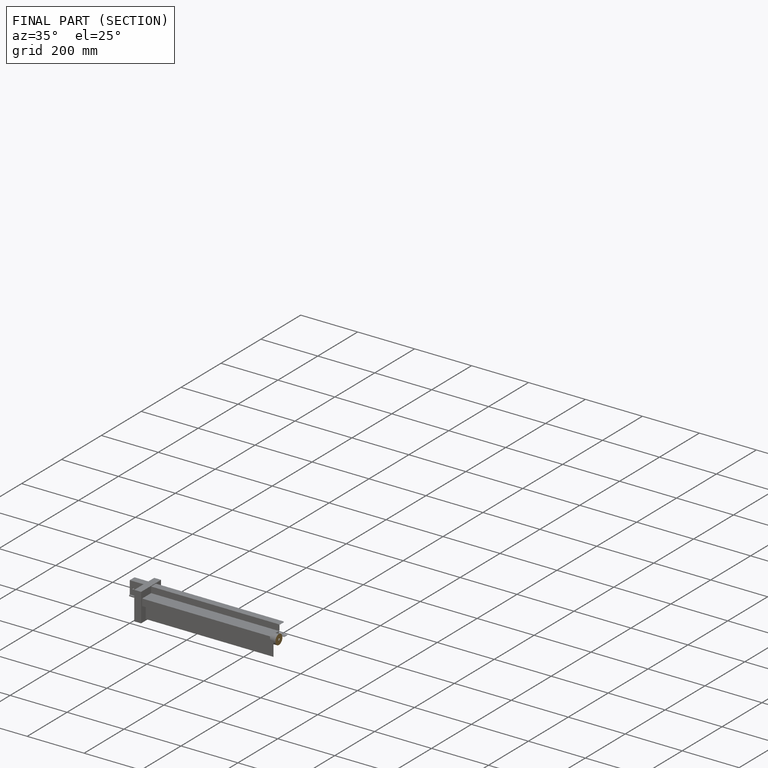
[diagram: finished part — half-section view (interior)]
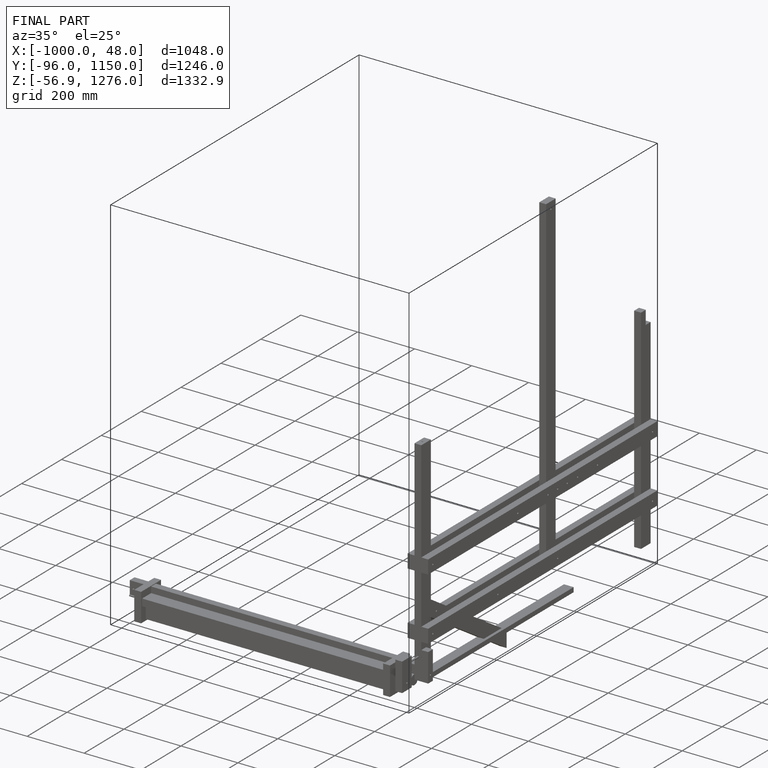
[diagram: finished part — iso view with bounding-box wireframe]
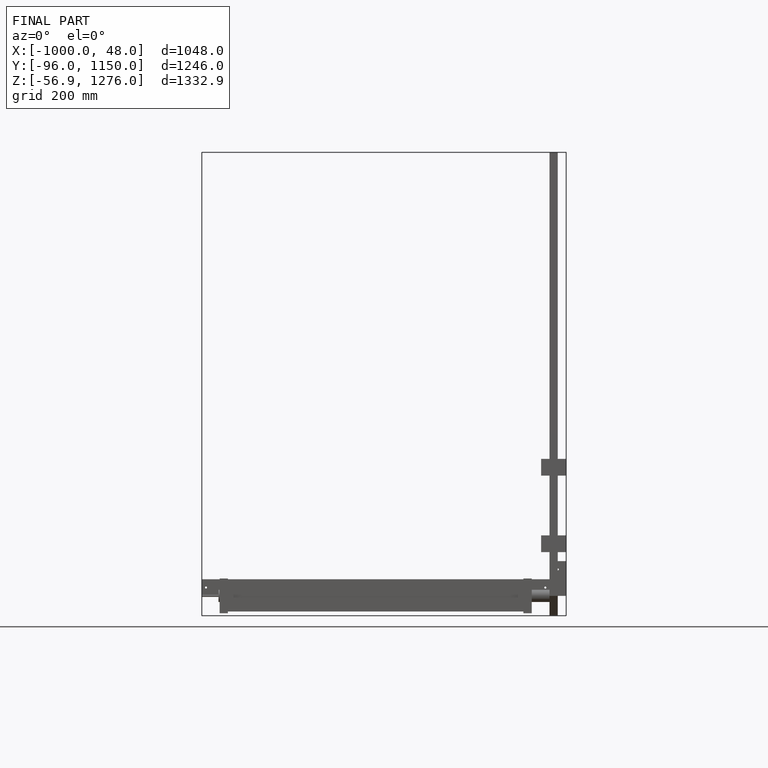
[diagram: finished part — front view with bounding-box wireframe]
